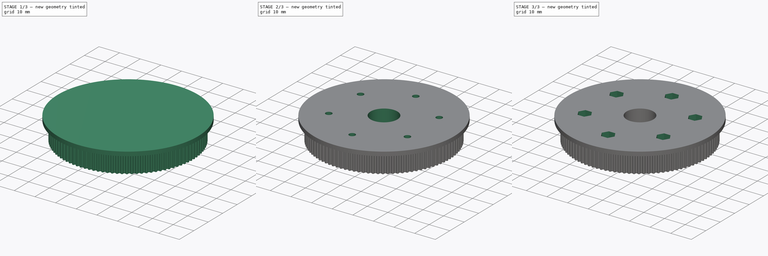
[diagram: build sequence overview — one tinted view per stage of 3, left to right]
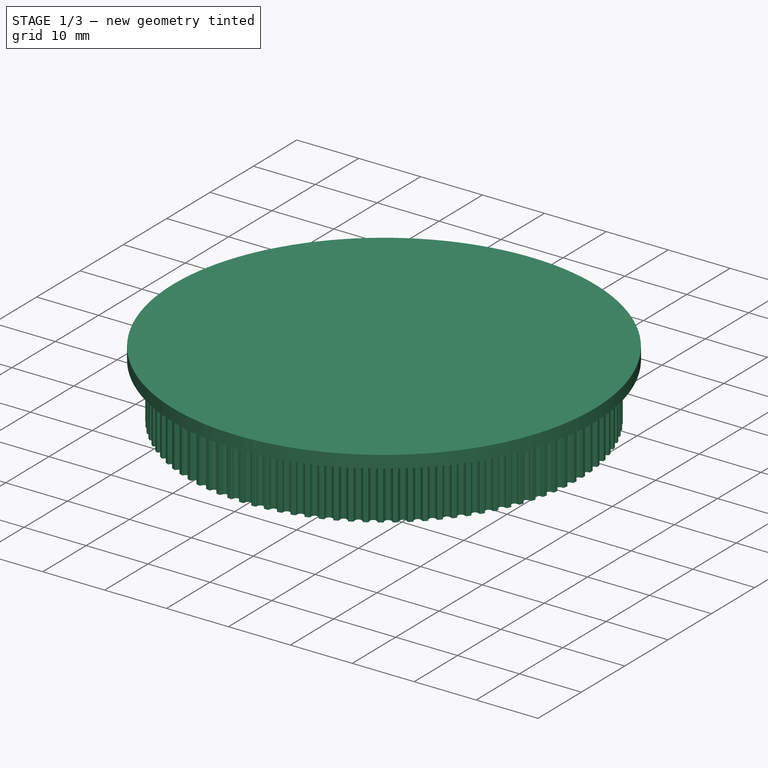
[diagram: stage 1 of 3 — iso view after this stage's code; geometry added in this stage tinted green]
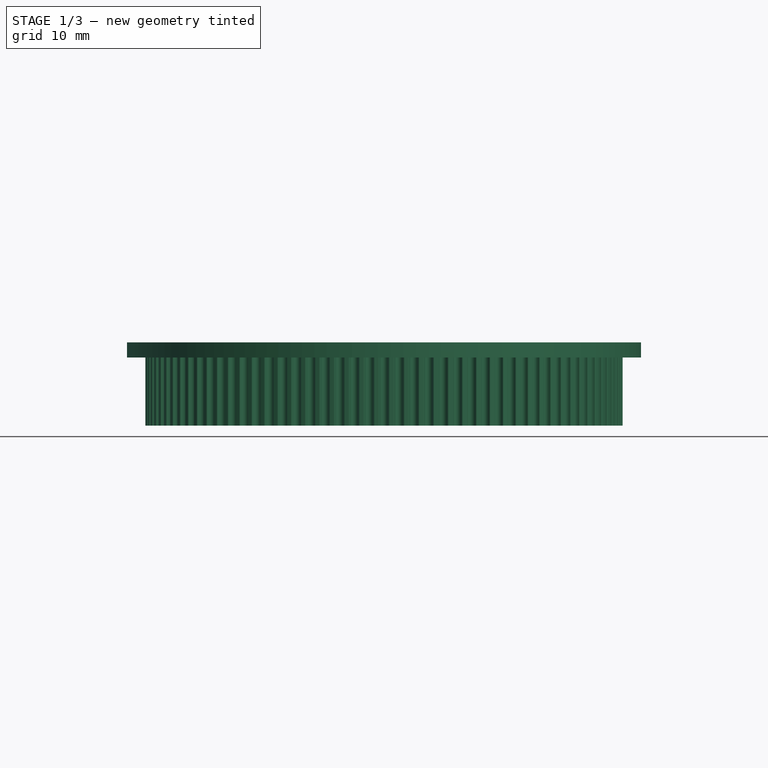
[diagram: stage 1 of 3 — front view after this stage's code; geometry added in this stage tinted green]
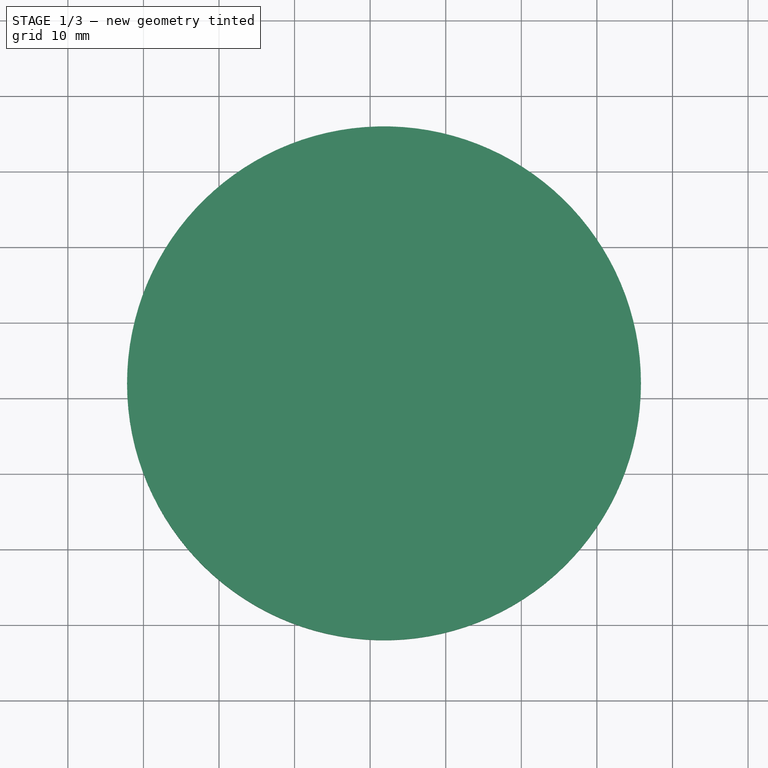
[diagram: stage 1 of 3 — top view after this stage's code; geometry added in this stage tinted green]
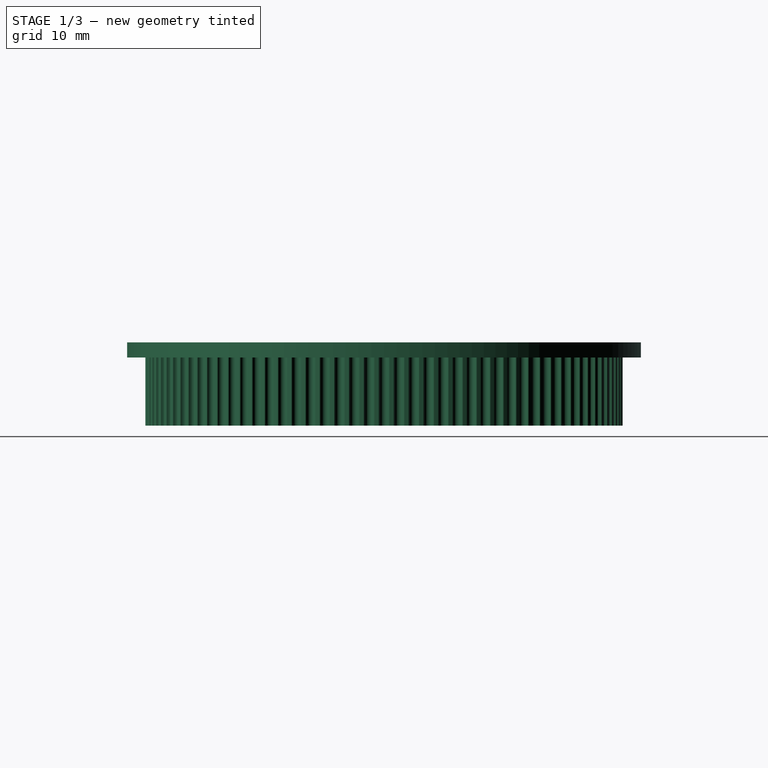
[diagram: stage 1 of 3 — right view after this stage's code; geometry added in this stage tinted green]
FCSTD DOCUMENT  (FreeCAD 0.20R29410 (Git))
Label: #10_MotorsBasePulleys
License: All rights reserved
LicenseURL: http://en.wikipedia.org/wiki/All_rights_reserved
objects: Sketcher::SketchObject×5, PartDesign::Pocket×3, PartDesign::Pad×2, PartDesign::PolarPattern×2, PartDesign::Body×1
note: 18 computed .brp shape members not serialized (recipe doc carries the construction recipe); baked Part::Feature solids carry a one-line shape summary decoded from their .brp

FEATURE [Sketcher::SketchObject] Sketch
  FullyConstrained = false
  sketch-geometry (701):
    g0: Circle CenterX=31.831 CenterY=31.831 CenterZ=0 NormalX=0 NormalY=0 NormalZ=-1 AngleXU=0 Radius=2.5
    g1: ArcOfCircle CenterX=63.2592 CenterY=31.1006 CenterZ=0 NormalX=0 NormalY=0 NormalZ=1 AngleXU=0 Radius=0.15 StartAngle=0 EndAngle=1.44109
    g2: ArcOfCircle CenterX=63.3675 CenterY=32.2454 CenterZ=0 NormalX=0 NormalY=0 NormalZ=1 AngleXU=0 Radius=1 StartAngle=4.28693 EndAngle=4.6234
    g3: ArcOfCircle CenterX=63.203 CenterY=31.831 CenterZ=0 NormalX=0 NormalY=0 NormalZ=1 AngleXU=0 Radius=0.555 StartAngle=3.14159 EndAngle=4.24874
    g4: ArcOfCircle CenterX=63.203 CenterY=31.831 CenterZ=0 NormalX=0 NormalY=0 NormalZ=1 AngleXU=0 Radius=0.555 StartAngle=2.03444 EndAngle=3.14159
    g5: ArcOfCircle CenterX=63.3675 CenterY=31.4165 CenterZ=0 NormalX=0 NormalY=0 NormalZ=1 AngleXU=0 Radius=1 StartAngle=1.65979 EndAngle=1.99625
    g6: ArcOfCircle CenterX=63.2592 CenterY=32.5613 CenterZ=0 NormalX=0 NormalY=0 NormalZ=1 AngleXU=0 Radius=0.15 StartAngle=4.84209 EndAngle=6.28319
    g7: ArcOfCircle CenterX=31.8407 CenterY=31.8313 CenterZ=0 NormalX=0 NormalY=0 NormalZ=1 AngleXU=0 Radius=31.577 StartAngle=0.0231213 EndAngle=0.0397106
    g8: ArcOfCircle CenterX=63.2431 CenterY=33.0755 CenterZ=0 NormalX=0 NormalY=0 NormalZ=1 AngleXU=0 Radius=0.15 StartAngle=0.0628319 EndAngle=1.50393
    g9: ArcOfCircle CenterX=63.2793 CenterY=34.2248 CenterZ=0 NormalX=0 NormalY=0 NormalZ=1 AngleXU=0 Radius=1 StartAngle=4.34976 EndAngle=4.68623
    g10: ArcOfCircle CenterX=63.1411 CenterY=33.8009 CenterZ=0 NormalX=0 NormalY=0 NormalZ=1 AngleXU=0 Radius=0.555 StartAngle=3.20442 EndAngle=4.31157
    g11: ArcOfCircle CenterX=63.1411 CenterY=33.8009 CenterZ=0 NormalX=0 NormalY=0 NormalZ=1 AngleXU=0 Radius=0.555 StartAngle=2.09728 EndAngle=3.20442
    g12: ArcOfCircle CenterX=63.3313 CenterY=33.3976 CenterZ=0 NormalX=0 NormalY=0 NormalZ=1 AngleXU=0 Radius=1 StartAngle=1.72262 EndAngle=2.05909
    g13: ArcOfCircle CenterX=63.1514 CenterY=34.5333 CenterZ=0 NormalX=0 NormalY=0 NormalZ=1 AngleXU=0 Radius=0.15 StartAngle=4.90492 EndAngle=6.34602
    g14: ArcOfCircle CenterX=31.8407 CenterY=31.8319 CenterZ=0 NormalX=0 NormalY=0 NormalZ=1 AngleXU=0 Radius=31.577 StartAngle=0.0859531 EndAngle=0.102542
    g15: ArcOfCircle CenterX=63.103 CenterY=35.0454 CenterZ=0 NormalX=0 NormalY=0 NormalZ=1 AngleXU=0 Radius=0.15 StartAngle=0.125664 EndAngle=1.56676
    g16: ArcOfCircle CenterX=63.0669 CenterY=36.1947 CenterZ=0 NormalX=0 NormalY=0 NormalZ=1 AngleXU=0 Radius=1 StartAngle=4.41259 EndAngle=4.74906
    g17: ArcOfCircle CenterX=62.9556 CenterY=35.7629 CenterZ=0 NormalX=0 NormalY=0 NormalZ=1 AngleXU=0 Radius=0.555 StartAngle=3.26726 EndAngle=4.37441
    g18: ArcOfCircle CenterX=62.9556 CenterY=35.7629 CenterZ=0 NormalX=0 NormalY=0 NormalZ=1 AngleXU=0 Radius=0.555 StartAngle=2.16011 EndAngle=3.26726
    g19: ArcOfCircle CenterX=63.1708 CenterY=35.3724 CenterZ=0 NormalX=0 NormalY=0 NormalZ=1 AngleXU=0 Radius=1 StartAngle=1.78545 EndAngle=2.12192
    g20: ArcOfCircle CenterX=62.9199 CenterY=36.4946 CenterZ=0 NormalX=0 NormalY=0 NormalZ=1 AngleXU=0 Radius=0.15 StartAngle=4.96776 EndAngle=6.40885
    g21: ArcOfCircle CenterX=31.8406 CenterY=31.8325 CenterZ=0 NormalX=0 NormalY=0 NormalZ=1 AngleXU=0 Radius=31.577 StartAngle=0.148785 EndAngle=0.165374
    g22: ArcOfCircle CenterX=62.8394 CenterY=37.0027 CenterZ=0 NormalX=0 NormalY=0 NormalZ=1 AngleXU=0 Radius=0.15 StartAngle=0.188496 EndAngle=1.62959
    g23: ArcOfCircle CenterX=62.7313 CenterY=38.1474 CenterZ=0 NormalX=0 NormalY=0 NormalZ=1 AngleXU=0 Radius=1 StartAngle=4.47543 EndAngle=4.81189
    g24: ArcOfCircle CenterX=62.6473 CenterY=37.7095 CenterZ=0 NormalX=0 NormalY=0 NormalZ=1 AngleXU=0 Radius=0.555 StartAngle=3.33009 EndAngle=4.43724
    g25: ArcOfCircle CenterX=62.6473 CenterY=37.7095 CenterZ=0 NormalX=0 NormalY=0 NormalZ=1 AngleXU=0 Radius=0.555 StartAngle=2.22294 EndAngle=3.33009
    g26: ArcOfCircle CenterX=62.8866 CenterY=37.3332 CenterZ=0 NormalX=0 NormalY=0 NormalZ=1 AngleXU=0 Radius=1 StartAngle=1.84828 EndAngle=2.18475
    g27: ArcOfCircle CenterX=62.5657 CenterY=38.4375 CenterZ=0 NormalX=0 NormalY=0 NormalZ=1 AngleXU=0 Radius=0.15 StartAngle=5.03059 EndAngle=6.47168
    g28: ArcOfCircle CenterX=31.8405 CenterY=31.8331 CenterZ=0 NormalX=0 NormalY=0 NormalZ=1 AngleXU=0 Radius=31.577 StartAngle=0.211617 EndAngle=0.228206
    g29: ArcOfCircle CenterX=62.4535 CenterY=38.9395 CenterZ=0 NormalX=0 NormalY=0 NormalZ=1 AngleXU=0 Radius=0.15 StartAngle=0.251327 EndAngle=1.69242
    g30: ArcOfCircle CenterX=62.2737 CenterY=40.0752 CenterZ=0 NormalX=0 NormalY=0 NormalZ=1 AngleXU=0 Radius=1 StartAngle=4.53826 EndAngle=4.87472
    g31: ArcOfCircle CenterX=62.2174 CenterY=39.6329 CenterZ=0 NormalX=0 NormalY=0 NormalZ=1 AngleXU=0 Radius=0.555 StartAngle=3.39292 EndAngle=4.50007
    g32: ArcOfCircle CenterX=62.2174 CenterY=39.6329 CenterZ=0 NormalX=0 NormalY=0 NormalZ=1 AngleXU=0 Radius=0.555 StartAngle=2.28577 EndAngle=3.39292
    g33: ArcOfCircle CenterX=62.4798 CenterY=39.2724 CenterZ=0 NormalX=0 NormalY=0 NormalZ=1 AngleXU=0 Radius=1 StartAngle=1.91112 EndAngle=2.24758
    g34: ArcOfCircle CenterX=62.0902 CenterY=40.3543 CenterZ=0 NormalX=0 NormalY=0 NormalZ=1 AngleXU=0 Radius=0.15 StartAngle=5.09342 EndAngle=6.53451
    g35: ArcOfCircle CenterX=31.8403 CenterY=31.8337 CenterZ=0 NormalX=0 NormalY=0 NormalZ=1 AngleXU=0 Radius=31.577 StartAngle=0.274449 EndAngle=0.291038
    g36: ArcOfCircle CenterX=61.9467 CenterY=40.8483 CenterZ=0 NormalX=0 NormalY=0 NormalZ=1 AngleXU=0 Radius=0.15 StartAngle=0.314159 EndAngle=1.75525
    g37: ArcOfCircle CenterX=61.6959 CenterY=41.9705 CenterZ=0 NormalX=0 NormalY=0 NormalZ=1 AngleXU=0 Radius=1 StartAngle=4.60109 EndAngle=4.93756
    g38: ArcOfCircle CenterX=61.6675 CenterY=41.5255 CenterZ=0 NormalX=0 NormalY=0 NormalZ=1 AngleXU=0 Radius=0.555 StartAngle=3.45575 EndAngle=4.5629
    g39: ArcOfCircle CenterX=61.6675 CenterY=41.5255 CenterZ=0 NormalX=0 NormalY=0 NormalZ=1 AngleXU=0 Radius=0.555 StartAngle=2.3486 EndAngle=3.45575
    g40: ArcOfCircle CenterX=61.9521 CenterY=41.1822 CenterZ=0 NormalX=0 NormalY=0 NormalZ=1 AngleXU=0 Radius=1 StartAngle=1.97395 EndAngle=2.31041
    g41: ArcOfCircle CenterX=61.4953 CenterY=42.2374 CenterZ=0 NormalX=0 NormalY=0 NormalZ=1 AngleXU=0 Radius=0.15 StartAngle=5.15625 EndAngle=6.59734
    g42: ArcOfCircle CenterX=31.8401 CenterY=31.8343 CenterZ=0 NormalX=0 NormalY=0 NormalZ=1 AngleXU=0 Radius=31.577 StartAngle=0.337281 EndAngle=0.35387
    g43: ArcOfCircle CenterX=61.3211 CenterY=42.7214 CenterZ=0 NormalX=0 NormalY=0 NormalZ=1 AngleXU=0 Radius=0.15 StartAngle=0.376991 EndAngle=1.81808
    g44: ArcOfCircle CenterX=61.0003 CenterY=43.8257 CenterZ=0 NormalX=0 NormalY=0 NormalZ=1 AngleXU=0 Radius=1 StartAngle=4.66392 EndAngle=5.00039
    g45: ArcOfCircle CenterX=60.9999 CenterY=43.3798 CenterZ=0 NormalX=0 NormalY=0 NormalZ=1 AngleXU=0 Radius=0.555 StartAngle=3.51858 EndAngle=4.62573
    g46: ArcOfCircle CenterX=60.9999 CenterY=43.3798 CenterZ=0 NormalX=0 NormalY=0 NormalZ=1 AngleXU=0 Radius=0.555 StartAngle=2.41144 EndAngle=3.51858
    g47: ArcOfCircle CenterX=61.3055 CenterY=43.055 CenterZ=0 NormalX=0 NormalY=0 NormalZ=1 AngleXU=0 Radius=1 StartAngle=2.03678 EndAngle=2.37325
    g48: ArcOfCircle CenterX=60.7834 CenterY=44.0796 CenterZ=0 NormalX=0 NormalY=0 NormalZ=1 AngleXU=0 Radius=0.15 StartAngle=5.21908 EndAngle=6.66018
    g49: ArcOfCircle CenterX=31.8399 CenterY=31.8348 CenterZ=0 NormalX=0 NormalY=0 NormalZ=1 AngleXU=0 Radius=31.577 StartAngle=0.400112 EndAngle=0.416702
    g50: ArcOfCircle CenterX=60.5791 CenterY=44.5517 CenterZ=0 NormalX=0 NormalY=0 NormalZ=1 AngleXU=0 Radius=0.15 StartAngle=0.439823 EndAngle=1.88092
    g51: ArcOfCircle CenterX=60.1896 CenterY=45.6336 CenterZ=0 NormalX=0 NormalY=0 NormalZ=1 AngleXU=0 Radius=1 StartAngle=4.72675 EndAngle=5.06322
    g52: ArcOfCircle CenterX=60.2172 CenterY=45.1885 CenterZ=0 NormalX=0 NormalY=0 NormalZ=1 AngleXU=0 Radius=0.555 StartAngle=3.58142 EndAngle=4.68856
    g53: ArcOfCircle CenterX=60.2172 CenterY=45.1885 CenterZ=0 NormalX=0 NormalY=0 NormalZ=1 AngleXU=0 Radius=0.555 StartAngle=2.47427 EndAngle=3.58142
    g54: ArcOfCircle CenterX=60.5425 CenterY=44.8836 CenterZ=0 NormalX=0 NormalY=0 NormalZ=1 AngleXU=0 Radius=1 StartAngle=2.09961 EndAngle=2.43608
    g55: ArcOfCircle CenterX=59.9572 CenterY=45.8733 CenterZ=0 NormalX=0 NormalY=0 NormalZ=1 AngleXU=0 Radius=0.15 StartAngle=5.28191 EndAngle=6.72301
    g56: ArcOfCircle CenterX=31.8396 CenterY=31.8354 CenterZ=0 NormalX=0 NormalY=0 NormalZ=1 AngleXU=0 Radius=31.577 StartAngle=0.462944 EndAngle=0.479534
    g57: ArcOfCircle CenterX=59.7236 CenterY=46.3317 CenterZ=0 NormalX=0 NormalY=0 NormalZ=1 AngleXU=0 Radius=0.15 StartAngle=0.502655 EndAngle=1.94375
    g58: ArcOfCircle CenterX=59.267 CenterY=47.387 CenterZ=0 NormalX=0 NormalY=0 NormalZ=1 AngleXU=0 Radius=1 StartAngle=4.78959 EndAngle=5.12605
    g59: ArcOfCircle CenterX=59.3225 CenterY=46.9446 CenterZ=0 NormalX=0 NormalY=0 NormalZ=1 AngleXU=0 Radius=0.555 StartAngle=3.64425 EndAngle=4.7514
    g60: ArcOfCircle CenterX=59.3225 CenterY=46.9446 CenterZ=0 NormalX=0 NormalY=0 NormalZ=1 AngleXU=0 Radius=0.555 StartAngle=2.5371 EndAngle=3.64425
    g61: ArcOfCircle CenterX=59.6663 CenterY=46.6606 CenterZ=0 NormalX=0 NormalY=0 NormalZ=1 AngleXU=0 Radius=1 StartAngle=2.16244 EndAngle=2.49891
    g62: ArcOfCircle CenterX=59.0199 CenterY=47.6117 CenterZ=0 NormalX=0 NormalY=0 NormalZ=1 AngleXU=0 Radius=0.15 StartAngle=5.34475 EndAngle=6.78584
    g63: ArcOfCircle CenterX=31.8393 CenterY=31.8359 CenterZ=0 NormalX=0 NormalY=0 NormalZ=1 AngleXU=0 Radius=31.577 StartAngle=0.525776 EndAngle=0.542365
    g64: ArcOfCircle CenterX=58.7581 CenterY=48.0544 CenterZ=0 NormalX=0 NormalY=0 NormalZ=1 AngleXU=0 Radius=0.15 StartAngle=0.565487 EndAngle=2.00658
    g65: ArcOfCircle CenterX=58.2361 CenterY=49.079 CenterZ=0 NormalX=0 NormalY=0 NormalZ=1 AngleXU=0 Radius=1 StartAngle=4.85242 EndAngle=5.18888
    g66: ArcOfCircle CenterX=58.3192 CenterY=48.6409 CenterZ=0 NormalX=0 NormalY=0 NormalZ=1 AngleXU=0 Radius=0.555 StartAngle=3.70708 EndAngle=4.81423
    g67: ArcOfCircle CenterX=58.3192 CenterY=48.6409 CenterZ=0 NormalX=0 NormalY=0 NormalZ=1 AngleXU=0 Radius=0.555 StartAngle=2.59993 EndAngle=3.70708
    g68: ArcOfCircle CenterX=58.6802 CenterY=48.3792 CenterZ=0 NormalX=0 NormalY=0 NormalZ=1 AngleXU=0 Radius=1 StartAngle=2.22527 EndAngle=2.56174
    g69: ArcOfCircle CenterX=57.9754 CenterY=49.2877 CenterZ=0 NormalX=0 NormalY=0 NormalZ=1 AngleXU=0 Radius=0.15 StartAngle=5.40758 EndAngle=6.84867
    g70: ArcOfCircle CenterX=31.839 CenterY=31.8364 CenterZ=0 NormalX=0 NormalY=0 NormalZ=1 AngleXU=0 Radius=31.577 StartAngle=0.588608 EndAngle=0.605197
    g71: ArcOfCircle CenterX=57.6863 CenterY=49.7132 CenterZ=0 NormalX=0 NormalY=0 NormalZ=1 AngleXU=0 Radius=0.15 StartAngle=0.628319 EndAngle=2.06941
    g72: ArcOfCircle CenterX=57.101 CenterY=50.703 CenterZ=0 NormalX=0 NormalY=0 NormalZ=1 AngleXU=0 Radius=1 StartAngle=4.91525 EndAngle=5.25172
    g73: ArcOfCircle CenterX=57.2115 CenterY=50.271 CenterZ=0 NormalX=0 NormalY=0 NormalZ=1 AngleXU=0 Radius=0.555 StartAngle=3.76991 EndAngle=4.87706
    g74: ArcOfCircle CenterX=57.2115 CenterY=50.271 CenterZ=0 NormalX=0 NormalY=0 NormalZ=1 AngleXU=0 Radius=0.555 StartAngle=2.66276 EndAngle=3.76991
    g75: ArcOfCircle CenterX=57.5882 CenterY=50.0324 CenterZ=0 NormalX=0 NormalY=0 NormalZ=1 AngleXU=0 Radius=1 StartAngle=2.28811 EndAngle=2.62457
    g76: ArcOfCircle CenterX=56.8277 CenterY=50.8949 CenterZ=0 NormalX=0 NormalY=0 NormalZ=1 AngleXU=0 Radius=0.15 StartAngle=5.47041 EndAngle=6.9115
    g77: ArcOfCircle CenterX=31.8387 CenterY=31.8369 CenterZ=0 NormalX=0 NormalY=0 NormalZ=1 AngleXU=0 Radius=31.577 StartAngle=0.65144 EndAngle=0.668029
    g78: ArcOfCircle CenterX=56.5124 CenterY=51.3014 CenterZ=0 NormalX=0 NormalY=0 NormalZ=1 AngleXU=0 Radius=0.15 StartAngle=0.69115 EndAngle=2.13224
    g79: ArcOfCircle CenterX=55.8661 CenterY=52.2525 CenterZ=0 NormalX=0 NormalY=0 NormalZ=1 AngleXU=0 Radius=1 StartAngle=4.97808 EndAngle=5.31455
    g80: ArcOfCircle CenterX=56.0035 CenterY=51.8282 CenterZ=0 NormalX=0 NormalY=0 NormalZ=1 AngleXU=0 Radius=0.555 StartAngle=3.83274 EndAngle=4.93989
    g81: ArcOfCircle CenterX=56.0035 CenterY=51.8282 CenterZ=0 NormalX=0 NormalY=0 NormalZ=1 AngleXU=0 Radius=0.555 StartAngle=2.72559 EndAngle=3.83274
    g82: ArcOfCircle CenterX=56.3945 CenterY=51.6138 CenterZ=0 NormalX=0 NormalY=0 NormalZ=1 AngleXU=0 Radius=1 StartAngle=2.35094 EndAngle=2.68741
    g83: ArcOfCircle CenterX=55.5813 CenterY=52.4268 CenterZ=0 NormalX=0 NormalY=0 NormalZ=1 AngleXU=0 Radius=0.15 StartAngle=5.53324 EndAngle=6.97434
    g84: ArcOfCircle CenterX=31.8383 CenterY=31.8374 CenterZ=0 NormalX=0 NormalY=0 NormalZ=1 AngleXU=0 Radius=31.577 StartAngle=0.714272 EndAngle=0.730861
    g85: ArcOfCircle CenterX=55.2411 CenterY=52.8127 CenterZ=0 NormalX=0 NormalY=0 NormalZ=1 AngleXU=0 Radius=0.15 StartAngle=0.753982 EndAngle=2.19508
    g86: ArcOfCircle CenterX=54.5364 CenterY=53.7213 CenterZ=0 NormalX=0 NormalY=0 NormalZ=1 AngleXU=0 Radius=1 StartAngle=5.04091 EndAngle=5.37738
    g87: ArcOfCircle CenterX=54.7002 CenterY=53.3066 CenterZ=0 NormalX=0 NormalY=0 NormalZ=1 AngleXU=0 Radius=0.555 StartAngle=3.89557 EndAngle=5.00272
    g88: ArcOfCircle CenterX=54.7002 CenterY=53.3066 CenterZ=0 NormalX=0 NormalY=0 NormalZ=1 AngleXU=0 Radius=0.555 StartAngle=2.78843 EndAngle=3.89557
    g89: ArcOfCircle CenterX=55.1038 CenterY=53.1171 CenterZ=0 NormalX=0 NormalY=0 NormalZ=1 AngleXU=0 Radius=1 StartAngle=2.41377 EndAngle=2.75024
    g90: ArcOfCircle CenterX=54.2412 CenterY=53.8775 CenterZ=0 NormalX=0 NormalY=0 NormalZ=1 AngleXU=0 Radius=0.15 StartAngle=5.59607 EndAngle=7.03717
    g91: ArcOfCircle CenterX=31.8379 CenterY=31.8379 CenterZ=0 NormalX=0 NormalY=0 NormalZ=1 AngleXU=0 Radius=31.577 StartAngle=0.777104 EndAngle=0.793693
    g92: ArcOfCircle CenterX=53.8775 CenterY=54.2412 CenterZ=0 NormalX=0 NormalY=0 NormalZ=1 AngleXU=0 Radius=0.15 StartAngle=0.816814 EndAngle=2.25791
    g93: ArcOfCircle CenterX=53.1171 CenterY=55.1038 CenterZ=0 NormalX=0 NormalY=0 NormalZ=1 AngleXU=0 Radius=1 StartAngle=5.10374 EndAngle=5.44021
    g94: ArcOfCircle CenterX=53.3066 CenterY=54.7002 CenterZ=0 NormalX=0 NormalY=0 NormalZ=1 AngleXU=0 Radius=0.555 StartAngle=3.95841 EndAngle=5.06556
    g95: ArcOfCircle CenterX=53.3066 CenterY=54.7002 CenterZ=0 NormalX=0 NormalY=0 NormalZ=1 AngleXU=0 Radius=0.555 StartAngle=2.85126 EndAngle=3.95841
    g96: ArcOfCircle CenterX=53.7213 CenterY=54.5364 CenterZ=0 NormalX=0 NormalY=0 NormalZ=1 AngleXU=0 Radius=1 StartAngle=2.4766 EndAngle=2.81307
    g97: ArcOfCircle CenterX=52.8127 CenterY=55.2411 CenterZ=0 NormalX=0 NormalY=0 NormalZ=1 AngleXU=0 Radius=0.15 StartAngle=5.65891 EndAngle=7.1
    g98: ArcOfCircle CenterX=31.8374 CenterY=31.8383 CenterZ=0 NormalX=0 NormalY=0 NormalZ=1 AngleXU=0 Radius=31.577 StartAngle=0.839935 EndAngle=0.856525
    g99: ArcOfCircle CenterX=52.4268 CenterY=55.5813 CenterZ=0 NormalX=0 NormalY=0 NormalZ=1 AngleXU=0 Radius=0.15 StartAngle=0.879646 EndAngle=2.32074
    g100: ArcOfCircle CenterX=51.6138 CenterY=56.3945 CenterZ=0 NormalX=0 NormalY=0 NormalZ=1 AngleXU=0 Radius=1 StartAngle=5.16658 EndAngle=5.50304
    g101: ArcOfCircle CenterX=51.8282 CenterY=56.0035 CenterZ=0 NormalX=0 NormalY=0 NormalZ=1 AngleXU=0 Radius=0.555 StartAngle=4.02124 EndAngle=5.12839
    g102: ArcOfCircle CenterX=51.8282 CenterY=56.0035 CenterZ=0 NormalX=0 NormalY=0 NormalZ=1 AngleXU=0 Radius=0.555 StartAngle=2.91409 EndAngle=4.02124
    g103: ArcOfCircle CenterX=52.2525 CenterY=55.8661 CenterZ=0 NormalX=0 NormalY=0 NormalZ=1 AngleXU=0 Radius=1 StartAngle=2.53943 EndAngle=2.8759
    g104: ArcOfCircle CenterX=51.3014 CenterY=56.5124 CenterZ=0 NormalX=0 NormalY=0 NormalZ=1 AngleXU=0 Radius=0.15 StartAngle=5.72174 EndAngle=7.16283
    g105: ArcOfCircle CenterX=31.8369 CenterY=31.8387 CenterZ=0 NormalX=0 NormalY=0 NormalZ=1 AngleXU=0 Radius=31.577 StartAngle=0.902767 EndAngle=0.919357
    g106: ArcOfCircle CenterX=50.8949 CenterY=56.8277 CenterZ=0 NormalX=0 NormalY=0 NormalZ=1 AngleXU=0 Radius=0.15 StartAngle=0.942478 EndAngle=2.38357
    g107: ArcOfCircle CenterX=50.0324 CenterY=57.5882 CenterZ=0 NormalX=0 NormalY=0 NormalZ=1 AngleXU=0 Radius=1 StartAngle=5.22941 EndAngle=5.56588
    g108: ArcOfCircle CenterX=50.271 CenterY=57.2115 CenterZ=0 NormalX=0 NormalY=0 NormalZ=1 AngleXU=0 Radius=0.555 StartAngle=4.08407 EndAngle=5.19122
    g109: ArcOfCircle CenterX=50.271 CenterY=57.2115 CenterZ=0 NormalX=0 NormalY=0 NormalZ=1 AngleXU=0 Radius=0.555 StartAngle=2.97692 EndAngle=4.08407
    g110: ArcOfCircle CenterX=50.703 CenterY=57.101 CenterZ=0 NormalX=0 NormalY=0 NormalZ=1 AngleXU=0 Radius=1 StartAngle=2.60227 EndAngle=2.93873
    g111: ArcOfCircle CenterX=49.7132 CenterY=57.6863 CenterZ=0 NormalX=0 NormalY=0 NormalZ=1 AngleXU=0 Radius=0.15 StartAngle=5.78457 EndAngle=7.22566
    g112: ArcOfCircle CenterX=31.8364 CenterY=31.839 CenterZ=0 NormalX=0 NormalY=0 NormalZ=1 AngleXU=0 Radius=31.577 StartAngle=0.965599 EndAngle=0.982188
    g113: ArcOfCircle CenterX=49.2877 CenterY=57.9754 CenterZ=0 NormalX=0 NormalY=0 NormalZ=1 AngleXU=0 Radius=0.15 StartAngle=1.00531 EndAngle=2.4464
    g114: ArcOfCircle CenterX=48.3792 CenterY=58.6802 CenterZ=0 NormalX=0 NormalY=0 NormalZ=1 AngleXU=0 Radius=1 StartAngle=5.29224 EndAngle=5.62871
    g115: ArcOfCircle CenterX=48.6409 CenterY=58.3192 CenterZ=0 NormalX=0 NormalY=0 NormalZ=1 AngleXU=0 Radius=0.555 StartAngle=4.1469 EndAngle=5.25405
    g116: ArcOfCircle CenterX=48.6409 CenterY=58.3192 CenterZ=0 NormalX=0 NormalY=0 NormalZ=1 AngleXU=0 Radius=0.555 StartAngle=3.03975 EndAngle=4.1469
    g117: ArcOfCircle CenterX=49.079 CenterY=58.2361 CenterZ=0 NormalX=0 NormalY=0 NormalZ=1 AngleXU=0 Radius=1 StartAngle=2.6651 EndAngle=3.00156
    g118: ArcOfCircle CenterX=48.0544 CenterY=58.7581 CenterZ=0 NormalX=0 NormalY=0 NormalZ=1 AngleXU=0 Radius=0.15 StartAngle=5.8474 EndAngle=7.28849
    g119: ArcOfCircle CenterX=31.8359 CenterY=31.8393 CenterZ=0 NormalX=0 NormalY=0 NormalZ=1 AngleXU=0 Radius=31.577 StartAngle=1.02843 EndAngle=1.04502
    g120: ArcOfCircle CenterX=47.6117 CenterY=59.0199 CenterZ=0 NormalX=0 NormalY=0 NormalZ=1 AngleXU=0 Radius=0.15 StartAngle=1.06814 EndAngle=2.50924
    g121: ArcOfCircle CenterX=46.6606 CenterY=59.6663 CenterZ=0 NormalX=0 NormalY=0 NormalZ=1 AngleXU=0 Radius=1 StartAngle=5.35507 EndAngle=5.69154
    g122: ArcOfCircle CenterX=46.9446 CenterY=59.3225 CenterZ=0 NormalX=0 NormalY=0 NormalZ=1 AngleXU=0 Radius=0.555 StartAngle=4.20973 EndAngle=5.31688
    g123: ArcOfCircle CenterX=46.9446 CenterY=59.3225 CenterZ=0 NormalX=0 NormalY=0 NormalZ=1 AngleXU=0 Radius=0.555 StartAngle=3.10259 EndAngle=4.20973
    g124: ArcOfCircle CenterX=47.387 CenterY=59.267 CenterZ=0 NormalX=0 NormalY=0 NormalZ=1 AngleXU=0 Radius=1 StartAngle=2.72793 EndAngle=3.0644
    g125: ArcOfCircle CenterX=46.3317 CenterY=59.7236 CenterZ=0 NormalX=0 NormalY=0 NormalZ=1 AngleXU=0 Radius=0.15 StartAngle=5.91023 EndAngle=7.35133
    g126: ArcOfCircle CenterX=31.8354 CenterY=31.8396 CenterZ=0 NormalX=0 NormalY=0 NormalZ=1 AngleXU=0 Radius=31.577 StartAngle=1.09126 EndAngle=1.10785
    g127: ArcOfCircle CenterX=45.8733 CenterY=59.9572 CenterZ=0 NormalX=0 NormalY=0 NormalZ=1 AngleXU=0 Radius=0.15 StartAngle=1.13097 EndAngle=2.57207
    g128: ArcOfCircle CenterX=44.8836 CenterY=60.5425 CenterZ=0 NormalX=0 NormalY=0 NormalZ=1 AngleXU=0 Radius=1 StartAngle=5.4179 EndAngle=5.75437
    g129: ArcOfCircle CenterX=45.1885 CenterY=60.2172 CenterZ=0 NormalX=0 NormalY=0 NormalZ=1 AngleXU=0 Radius=0.555 StartAngle=4.27257 EndAngle=5.37971
    g130: ArcOfCircle CenterX=45.1885 CenterY=60.2172 CenterZ=0 NormalX=0 NormalY=0 NormalZ=1 AngleXU=0 Radius=0.555 StartAngle=3.16542 EndAngle=4.27257
    g131: ArcOfCircle CenterX=45.6336 CenterY=60.1896 CenterZ=0 NormalX=0 NormalY=0 NormalZ=1 AngleXU=0 Radius=1 StartAngle=2.79076 EndAngle=3.12723
    g132: ArcOfCircle CenterX=44.5517 CenterY=60.5791 CenterZ=0 NormalX=0 NormalY=0 NormalZ=1 AngleXU=0 Radius=0.15 StartAngle=5.97306 EndAngle=7.41416
    g133: ArcOfCircle CenterX=31.8348 CenterY=31.8399 CenterZ=0 NormalX=0 NormalY=0 NormalZ=1 AngleXU=0 Radius=31.577 StartAngle=1.15409 EndAngle=1.17068
    g134: ArcOfCircle CenterX=44.0796 CenterY=60.7834 CenterZ=0 NormalX=0 NormalY=0 NormalZ=1 AngleXU=0 Radius=0.15 StartAngle=1.19381 EndAngle=2.6349
    g135: ArcOfCircle CenterX=43.055 CenterY=61.3055 CenterZ=0 NormalX=0 NormalY=0 NormalZ=1 AngleXU=0 Radius=1 StartAngle=5.48074 EndAngle=5.8172
    g136: ArcOfCircle CenterX=43.3798 CenterY=60.9999 CenterZ=0 NormalX=0 NormalY=0 NormalZ=1 AngleXU=0 Radius=0.555 StartAngle=4.3354 EndAngle=5.44255
    g137: ArcOfCircle CenterX=43.3798 CenterY=60.9999 CenterZ=0 NormalX=0 NormalY=0 NormalZ=1 AngleXU=0 Radius=0.555 StartAngle=3.22825 EndAngle=4.3354
    g138: ArcOfCircle CenterX=43.8257 CenterY=61.0003 CenterZ=0 NormalX=0 NormalY=0 NormalZ=1 AngleXU=0 Radius=1 StartAngle=2.85359 EndAngle=3.19006
    g139: ArcOfCircle CenterX=42.7214 CenterY=61.3211 CenterZ=0 NormalX=0 NormalY=0 NormalZ=1 AngleXU=0 Radius=0.15 StartAngle=6.0359 EndAngle=7.47699
    g140: ArcOfCircle CenterX=31.8343 CenterY=31.8401 CenterZ=0 NormalX=0 NormalY=0 NormalZ=1 AngleXU=0 Radius=31.577 StartAngle=1.21693 EndAngle=1.23352
    g141: ArcOfCircle CenterX=42.2374 CenterY=61.4953 CenterZ=0 NormalX=0 NormalY=0 NormalZ=1 AngleXU=0 Radius=0.15 StartAngle=1.25664 EndAngle=2.69773
    g142: ArcOfCircle CenterX=41.1822 CenterY=61.9521 CenterZ=0 NormalX=0 NormalY=0 NormalZ=1 AngleXU=0 Radius=1 StartAngle=5.54357 EndAngle=5.88003
    g143: ArcOfCircle CenterX=41.5255 CenterY=61.6675 CenterZ=0 NormalX=0 NormalY=0 NormalZ=1 AngleXU=0 Radius=0.555 StartAngle=4.39823 EndAngle=5.50538
    g144: ArcOfCircle CenterX=41.5255 CenterY=61.6675 CenterZ=0 NormalX=0 NormalY=0 NormalZ=1 AngleXU=0 Radius=0.555 StartAngle=3.29108 EndAngle=4.39823
    g145: ArcOfCircle CenterX=41.9705 CenterY=61.6959 CenterZ=0 NormalX=0 NormalY=0 NormalZ=1 AngleXU=0 Radius=1 StartAngle=2.91643 EndAngle=3.25289
    g146: ArcOfCircle CenterX=40.8483 CenterY=61.9467 CenterZ=0 NormalX=0 NormalY=0 NormalZ=1 AngleXU=0 Radius=0.15 StartAngle=6.09873 EndAngle=7.53982
    g147: ArcOfCircle CenterX=31.8337 CenterY=31.8403 CenterZ=0 NormalX=0 NormalY=0 NormalZ=1 AngleXU=0 Radius=31.577 StartAngle=1.27976 EndAngle=1.29635
    g148: ArcOfCircle CenterX=40.3543 CenterY=62.0902 CenterZ=0 NormalX=0 NormalY=0 NormalZ=1 AngleXU=0 Radius=0.15 StartAngle=1.31947 EndAngle=2.76056
    g149: ArcOfCircle CenterX=39.2724 CenterY=62.4798 CenterZ=0 NormalX=0 NormalY=0 NormalZ=1 AngleXU=0 Radius=1 StartAngle=5.6064 EndAngle=5.94287
    g150: ArcOfCircle CenterX=39.6329 CenterY=62.2174 CenterZ=0 NormalX=0 NormalY=0 NormalZ=1 AngleXU=0 Radius=0.555 StartAngle=4.46106 EndAngle=5.56821
    g151: ArcOfCircle CenterX=39.6329 CenterY=62.2174 CenterZ=0 NormalX=0 NormalY=0 NormalZ=1 AngleXU=0 Radius=0.555 StartAngle=3.35391 EndAngle=4.46106
    g152: ArcOfCircle CenterX=40.0752 CenterY=62.2737 CenterZ=0 NormalX=0 NormalY=0 NormalZ=1 AngleXU=0 Radius=1 StartAngle=2.97926 EndAngle=3.31572
    g153: ArcOfCircle CenterX=38.9395 CenterY=62.4535 CenterZ=0 NormalX=0 NormalY=0 NormalZ=1 AngleXU=0 Radius=0.15 StartAngle=6.16156 EndAngle=7.60265
    g154: ArcOfCircle CenterX=31.8331 CenterY=31.8405 CenterZ=0 NormalX=0 NormalY=0 NormalZ=1 AngleXU=0 Radius=31.577 StartAngle=1.34259 EndAngle=1.35918
    g155: ArcOfCircle CenterX=38.4375 CenterY=62.5657 CenterZ=0 NormalX=0 NormalY=0 NormalZ=1 AngleXU=0 Radius=0.15 StartAngle=1.3823 EndAngle=2.82339
    g156: ArcOfCircle CenterX=37.3332 CenterY=62.8866 CenterZ=0 NormalX=0 NormalY=0 NormalZ=1 AngleXU=0 Radius=1 StartAngle=5.66923 EndAngle=6.0057
    g157: ArcOfCircle CenterX=37.7095 CenterY=62.6473 CenterZ=0 NormalX=0 NormalY=0 NormalZ=1 AngleXU=0 Radius=0.555 StartAngle=4.52389 EndAngle=5.63104
    g158: ArcOfCircle CenterX=37.7095 CenterY=62.6473 CenterZ=0 NormalX=0 NormalY=0 NormalZ=1 AngleXU=0 Radius=0.555 StartAngle=3.41674 EndAngle=4.52389
    g159: ArcOfCircle CenterX=38.1474 CenterY=62.7313 CenterZ=0 NormalX=0 NormalY=0 NormalZ=1 AngleXU=0 Radius=1 StartAngle=3.04209 EndAngle=3.37856
    g160: ArcOfCircle CenterX=37.0027 CenterY=62.8394 CenterZ=0 NormalX=0 NormalY=0 NormalZ=1 AngleXU=0 Radius=0.15 StartAngle=6.22439 EndAngle=7.66549
    g161: ArcOfCircle CenterX=31.8325 CenterY=31.8406 CenterZ=0 NormalX=0 NormalY=0 NormalZ=1 AngleXU=0 Radius=31.577 StartAngle=1.40542 EndAngle=1.42201
    g162: ArcOfCircle CenterX=36.4946 CenterY=62.9199 CenterZ=0 NormalX=0 NormalY=0 NormalZ=1 AngleXU=0 Radius=0.15 StartAngle=1.44513 EndAngle=2.88623
    g163: ArcOfCircle CenterX=35.3724 CenterY=63.1708 CenterZ=0 NormalX=0 NormalY=0 NormalZ=1 AngleXU=0 Radius=1 StartAngle=5.73206 EndAngle=6.06853
    g164: ArcOfCircle CenterX=35.7629 CenterY=62.9556 CenterZ=0 NormalX=0 NormalY=0 NormalZ=1 AngleXU=0 Radius=0.555 StartAngle=4.58673 EndAngle=5.69387
    g165: ArcOfCircle CenterX=35.7629 CenterY=62.9556 CenterZ=0 NormalX=0 NormalY=0 NormalZ=1 AngleXU=0 Radius=0.555 StartAngle=3.47958 EndAngle=4.58673
    g166: ArcOfCircle CenterX=36.1947 CenterY=63.0669 CenterZ=0 NormalX=0 NormalY=0 NormalZ=1 AngleXU=0 Radius=1 StartAngle=3.10492 EndAngle=3.44139
    g167: ArcOfCircle CenterX=35.0454 CenterY=63.103 CenterZ=0 NormalX=0 NormalY=0 NormalZ=1 AngleXU=0 Radius=0.15 StartAngle=0.00403883 EndAngle=1.44513
    g168: ArcOfCircle CenterX=31.8319 CenterY=31.8407 CenterZ=0 NormalX=0 NormalY=0 NormalZ=1 AngleXU=0 Radius=31.577 StartAngle=1.46825 EndAngle=1.48484
    g169: ArcOfCircle CenterX=34.5333 CenterY=63.1514 CenterZ=0 NormalX=0 NormalY=0 NormalZ=1 AngleXU=0 Radius=0.15 StartAngle=1.50796 EndAngle=2.94906
    g170: ArcOfCircle CenterX=33.3976 CenterY=63.3313 CenterZ=0 NormalX=0 NormalY=0 NormalZ=1 AngleXU=0 Radius=1 StartAngle=5.79489 EndAngle=6.13136
    g171: ArcOfCircle CenterX=33.8009 CenterY=63.1411 CenterZ=0 NormalX=0 NormalY=0 NormalZ=1 AngleXU=0 Radius=0.555 StartAngle=4.64956 EndAngle=5.75671
    g172: ArcOfCircle CenterX=33.8009 CenterY=63.1411 CenterZ=0 NormalX=0 NormalY=0 NormalZ=1 AngleXU=0 Radius=0.555 StartAngle=3.54241 EndAngle=4.64956
    g173: ArcOfCircle CenterX=34.2248 CenterY=63.2793 CenterZ=0 NormalX=0 NormalY=0 NormalZ=1 AngleXU=0 Radius=1 StartAngle=3.16775 EndAngle=3.50422
    g174: ArcOfCircle CenterX=33.0755 CenterY=63.2431 CenterZ=0 NormalX=0 NormalY=0 NormalZ=1 AngleXU=0 Radius=0.15 StartAngle=0.0668707 EndAngle=1.50796
    g175: ArcOfCircle CenterX=31.8313 CenterY=31.8407 CenterZ=0 NormalX=0 NormalY=0 NormalZ=1 AngleXU=0 Radius=31.577 StartAngle=1.53109 EndAngle=1.54768
    g176: ArcOfCircle CenterX=32.5613 CenterY=63.2592 CenterZ=0 NormalX=0 NormalY=0 NormalZ=1 AngleXU=0 Radius=0.15 StartAngle=1.5708 EndAngle=3.01189
    g177: ArcOfCircle CenterX=31.4165 CenterY=63.3675 CenterZ=0 NormalX=0 NormalY=0 NormalZ=1 AngleXU=0 Radius=1 StartAngle=5.85773 EndAngle=6.19419
    g178: ArcOfCircle CenterX=31.831 CenterY=63.203 CenterZ=0 NormalX=0 NormalY=0 NormalZ=1 AngleXU=0 Radius=0.555 StartAngle=4.71239 EndAngle=5.81954
    g179: ArcOfCircle CenterX=31.831 CenterY=63.203 CenterZ=0 NormalX=0 NormalY=0 NormalZ=1 AngleXU=0 Radius=0.555 StartAngle=3.60524 EndAngle=4.71239
    g180: ArcOfCircle CenterX=32.2454 CenterY=63.3675 CenterZ=0 NormalX=0 NormalY=0 NormalZ=1 AngleXU=0 Radius=1 StartAngle=3.23058 EndAngle=3.56705
    g181: ArcOfCircle CenterX=31.1006 CenterY=63.2592 CenterZ=0 NormalX=0 NormalY=0 NormalZ=1 AngleXU=0 Radius=0.15 StartAngle=0.129703 EndAngle=1.5708
    g182: ArcOfCircle CenterX=31.8307 CenterY=31.8407 CenterZ=0 NormalX=0 NormalY=0 NormalZ=1 AngleXU=0 Radius=31.577 StartAngle=1.59392 EndAngle=1.61051
    g183: ArcOfCircle CenterX=30.5865 CenterY=63.2431 CenterZ=0 NormalX=0 NormalY=0 NormalZ=1 AngleXU=0 Radius=0.15 StartAngle=1.63363 EndAngle=3.07472
    g184: ArcOfCircle CenterX=29.4372 CenterY=63.2793 CenterZ=0 NormalX=0 NormalY=0 NormalZ=1 AngleXU=0 Radius=1 StartAngle=5.92056 EndAngle=6.25703
    g185: ArcOfCircle CenterX=29.8611 CenterY=63.1411 CenterZ=0 NormalX=0 NormalY=0 NormalZ=1 AngleXU=0 Radius=0.555 StartAngle=4.77522 EndAngle=5.88237
    g186: ArcOfCircle CenterX=29.8611 CenterY=63.1411 CenterZ=0 NormalX=0 NormalY=0 NormalZ=1 AngleXU=0 Radius=0.555 StartAngle=3.66807 EndAngle=4.77522
    g187: ArcOfCircle CenterX=30.2644 CenterY=63.3313 CenterZ=0 NormalX=0 NormalY=0 NormalZ=1 AngleXU=0 Radius=1 StartAngle=3.29342 EndAngle=3.62988
    g188: ArcOfCircle CenterX=29.1287 CenterY=63.1514 CenterZ=0 NormalX=0 NormalY=0 NormalZ=1 AngleXU=0 Radius=0.15 StartAngle=0.192534 EndAngle=1.63363
    g189: ArcOfCircle CenterX=31.8301 CenterY=31.8407 CenterZ=0 NormalX=0 NormalY=0 NormalZ=1 AngleXU=0 Radius=31.577 StartAngle=1.65675 EndAngle=1.67334
    g190: ArcOfCircle CenterX=28.6166 CenterY=63.103 CenterZ=0 NormalX=0 NormalY=0 NormalZ=1 AngleXU=0 Radius=0.15 StartAngle=1.69646 EndAngle=3.13755
    g191: ArcOfCircle CenterX=27.4672 CenterY=63.0669 CenterZ=0 NormalX=0 NormalY=0 NormalZ=1 AngleXU=0 Radius=1 StartAngle=5.98339 EndAngle=6.31986
    g192: ArcOfCircle CenterX=27.899 CenterY=62.9556 CenterZ=0 NormalX=0 NormalY=0 NormalZ=1 AngleXU=0 Radius=0.555 StartAngle=4.83805 EndAngle=5.9452
    g193: ArcOfCircle CenterX=27.899 CenterY=62.9556 CenterZ=0 NormalX=0 NormalY=0 NormalZ=1 AngleXU=0 Radius=0.555 StartAngle=3.7309 EndAngle=4.83805
    g194: ArcOfCircle CenterX=28.2896 CenterY=63.1708 CenterZ=0 NormalX=0 NormalY=0 NormalZ=1 AngleXU=0 Radius=1 StartAngle=3.35625 EndAngle=3.69271
    g195: ArcOfCircle CenterX=27.1674 CenterY=62.9199 CenterZ=0 NormalX=0 NormalY=0 NormalZ=1 AngleXU=0 Radius=0.15 StartAngle=0.255366 EndAngle=1.69646
    g196: ArcOfCircle CenterX=31.8295 CenterY=31.8406 CenterZ=0 NormalX=0 NormalY=0 NormalZ=1 AngleXU=0 Radius=31.577 StartAngle=1.71958 EndAngle=1.73617
    g197: ArcOfCircle CenterX=26.6593 CenterY=62.8394 CenterZ=0 NormalX=0 NormalY=0 NormalZ=1 AngleXU=0 Radius=0.15 StartAngle=1.75929 EndAngle=3.20039
    g198: ArcOfCircle CenterX=25.5145 CenterY=62.7313 CenterZ=0 NormalX=0 NormalY=0 NormalZ=1 AngleXU=0 Radius=1 StartAngle=6.04622 EndAngle=6.38269
    g199: ArcOfCircle CenterX=25.9525 CenterY=62.6473 CenterZ=0 NormalX=0 NormalY=0 NormalZ=1 AngleXU=0 Radius=0.555 StartAngle=4.90088 EndAngle=6.00803
    g200: ArcOfCircle CenterX=25.9525 CenterY=62.6473 CenterZ=0 NormalX=0 NormalY=0 NormalZ=1 AngleXU=0 Radius=0.555 StartAngle=3.79374 EndAngle=4.90088
    g201: ArcOfCircle CenterX=26.3287 CenterY=62.8866 CenterZ=0 NormalX=0 NormalY=0 NormalZ=1 AngleXU=0 Radius=1 StartAngle=3.41908 EndAngle=3.75555
    g202: ArcOfCircle CenterX=25.2245 CenterY=62.5657 CenterZ=0 NormalX=0 NormalY=0 NormalZ=1 AngleXU=0 Radius=0.15 StartAngle=0.318198 EndAngle=1.75929
    g203: ArcOfCircle CenterX=31.8289 CenterY=31.8405 CenterZ=0 NormalX=0 NormalY=0 NormalZ=1 AngleXU=0 Radius=31.577 StartAngle=1.78241 EndAngle=1.799
    g204: ArcOfCircle CenterX=24.7225 CenterY=62.4535 CenterZ=0 NormalX=0 NormalY=0 NormalZ=1 AngleXU=0 Radius=0.15 StartAngle=1.82212 EndAngle=3.26322
    g205: ArcOfCircle CenterX=23.5868 CenterY=62.2737 CenterZ=0 NormalX=0 NormalY=0 NormalZ=1 AngleXU=0 Radius=1 StartAngle=6.10905 EndAngle=6.44552
    g206: ArcOfCircle CenterX=24.0291 CenterY=62.2174 CenterZ=0 NormalX=0 NormalY=0 NormalZ=1 AngleXU=0 Radius=0.555 StartAngle=4.96372 EndAngle=6.07087
    g207: ArcOfCircle CenterX=24.0291 CenterY=62.2174 CenterZ=0 NormalX=0 NormalY=0 NormalZ=1 AngleXU=0 Radius=0.555 StartAngle=3.85657 EndAngle=4.96372
    g208: ArcOfCircle CenterX=24.3896 CenterY=62.4798 CenterZ=0 NormalX=0 NormalY=0 NormalZ=1 AngleXU=0 Radius=1 StartAngle=3.48191 EndAngle=3.81838
    g209: ArcOfCircle CenterX=23.3077 CenterY=62.0902 CenterZ=0 NormalX=0 NormalY=0 NormalZ=1 AngleXU=0 Radius=0.15 StartAngle=0.38103 EndAngle=1.82212
    g210: ArcOfCircle CenterX=31.8283 CenterY=31.8403 CenterZ=0 NormalX=0 NormalY=0 NormalZ=1 AngleXU=0 Radius=31.577 StartAngle=1.84525 EndAngle=1.86183
    g211: ArcOfCircle CenterX=22.8137 CenterY=61.9467 CenterZ=0 NormalX=0 NormalY=0 NormalZ=1 AngleXU=0 Radius=0.15 StartAngle=1.88496 EndAngle=3.32605
    g212: ArcOfCircle CenterX=21.6915 CenterY=61.6959 CenterZ=0 NormalX=0 NormalY=0 NormalZ=1 AngleXU=0 Radius=1 StartAngle=6.17189 EndAngle=6.50835
    g213: ArcOfCircle CenterX=22.1365 CenterY=61.6675 CenterZ=0 NormalX=0 NormalY=0 NormalZ=1 AngleXU=0 Radius=0.555 StartAngle=5.02655 EndAngle=6.1337
    g214: ArcOfCircle CenterX=22.1365 CenterY=61.6675 CenterZ=0 NormalX=0 NormalY=0 NormalZ=1 AngleXU=0 Radius=0.555 StartAngle=3.9194 EndAngle=5.02655
    g215: ArcOfCircle CenterX=22.4798 CenterY=61.9521 CenterZ=0 NormalX=0 NormalY=0 NormalZ=1 AngleXU=0 Radius=1 StartAngle=3.54474 EndAngle=3.88121
    g216: ArcOfCircle CenterX=21.4245 CenterY=61.4953 CenterZ=0 NormalX=0 NormalY=0 NormalZ=1 AngleXU=0 Radius=0.15 StartAngle=0.443862 EndAngle=1.88496
    g217: ArcOfCircle CenterX=31.8277 CenterY=31.8401 CenterZ=0 NormalX=0 NormalY=0 NormalZ=1 AngleXU=0 Radius=31.577 StartAngle=1.90808 EndAngle=1.92467
    g218: ArcOfCircle CenterX=20.9405 CenterY=61.3211 CenterZ=0 NormalX=0 NormalY=0 NormalZ=1 AngleXU=0 Radius=0.15 StartAngle=1.94779 EndAngle=3.38888
    g219: ArcOfCircle CenterX=19.8363 CenterY=61.0003 CenterZ=0 NormalX=0 NormalY=0 NormalZ=1 AngleXU=0 Radius=1 StartAngle=6.23472 EndAngle=6.57118
    g220: ArcOfCircle CenterX=20.2822 CenterY=60.9999 CenterZ=0 NormalX=0 NormalY=0 NormalZ=1 AngleXU=0 Radius=0.555 StartAngle=5.08938 EndAngle=6.19653
    g221: ArcOfCircle CenterX=20.2822 CenterY=60.9999 CenterZ=0 NormalX=0 NormalY=0 NormalZ=1 AngleXU=0 Radius=0.555 StartAngle=3.98223 EndAngle=5.08938
    g222: ArcOfCircle CenterX=20.607 CenterY=61.3055 CenterZ=0 NormalX=0 NormalY=0 NormalZ=1 AngleXU=0 Radius=1 StartAngle=3.60758 EndAngle=3.94404
    g223: ArcOfCircle CenterX=19.5824 CenterY=60.7834 CenterZ=0 NormalX=0 NormalY=0 NormalZ=1 AngleXU=0 Radius=0.15 StartAngle=0.506694 EndAngle=1.94779
    g224: ArcOfCircle CenterX=31.8271 CenterY=31.8399 CenterZ=0 NormalX=0 NormalY=0 NormalZ=1 AngleXU=0 Radius=31.577 StartAngle=1.97091 EndAngle=1.9875
    g225: ArcOfCircle CenterX=19.1103 CenterY=60.5791 CenterZ=0 NormalX=0 NormalY=0 NormalZ=1 AngleXU=0 Radius=0.15 StartAngle=2.01062 EndAngle=3.45171
    g226: ArcOfCircle CenterX=18.0284 CenterY=60.1896 CenterZ=0 NormalX=0 NormalY=0 NormalZ=1 AngleXU=0 Radius=1 StartAngle=0.0143644 EndAngle=0.350831
    g227: ArcOfCircle CenterX=18.4734 CenterY=60.2172 CenterZ=0 NormalX=0 NormalY=0 NormalZ=1 AngleXU=0 Radius=0.555 StartAngle=5.15221 EndAngle=6.25936
    g228: ArcOfCircle CenterX=18.4734 CenterY=60.2172 CenterZ=0 NormalX=0 NormalY=0 NormalZ=1 AngleXU=0 Radius=0.555 StartAngle=4.04506 EndAngle=5.15221
    g229: ArcOfCircle CenterX=18.7784 CenterY=60.5425 CenterZ=0 NormalX=0 NormalY=0 NormalZ=1 AngleXU=0 Radius=1 StartAngle=3.67041 EndAngle=4.00687
    g230: ArcOfCircle CenterX=17.7887 CenterY=59.9572 CenterZ=0 NormalX=0 NormalY=0 NormalZ=1 AngleXU=0 Radius=0.15 StartAngle=0.569526 EndAngle=2.01062
    g231: ArcOfCircle CenterX=31.8266 CenterY=31.8396 CenterZ=0 NormalX=0 NormalY=0 NormalZ=1 AngleXU=0 Radius=31.577 StartAngle=2.03374 EndAngle=2.05033
    g232: ArcOfCircle CenterX=17.3303 CenterY=59.7236 CenterZ=0 NormalX=0 NormalY=0 NormalZ=1 AngleXU=0 Radius=0.15 StartAngle=2.07345 EndAngle=3.51454
    g233: ArcOfCircle CenterX=16.275 CenterY=59.267 CenterZ=0 NormalX=0 NormalY=0 NormalZ=1 AngleXU=0 Radius=1 StartAngle=0.0771962 EndAngle=0.413663
    g234: ArcOfCircle CenterX=16.7174 CenterY=59.3225 CenterZ=0 NormalX=0 NormalY=0 NormalZ=1 AngleXU=0 Radius=0.555 StartAngle=5.21504 EndAngle=6.32219
    g235: ArcOfCircle CenterX=16.7174 CenterY=59.3225 CenterZ=0 NormalX=0 NormalY=0 NormalZ=1 AngleXU=0 Radius=0.555 StartAngle=4.1079 EndAngle=5.21504
    g236: ArcOfCircle CenterX=17.0013 CenterY=59.6663 CenterZ=0 NormalX=0 NormalY=0 NormalZ=1 AngleXU=0 Radius=1 StartAngle=3.73324 EndAngle=4.06971
    g237: ArcOfCircle CenterX=16.0503 CenterY=59.0199 CenterZ=0 NormalX=0 NormalY=0 NormalZ=1 AngleXU=0 Radius=0.15 StartAngle=0.632357 EndAngle=2.07345
    g238: ArcOfCircle CenterX=31.826 CenterY=31.8393 CenterZ=0 NormalX=0 NormalY=0 NormalZ=1 AngleXU=0 Radius=31.577 StartAngle=2.09657 EndAngle=2.11316
    g239: ArcOfCircle CenterX=15.6075 CenterY=58.7581 CenterZ=0 NormalX=0 NormalY=0 NormalZ=1 AngleXU=0 Radius=0.15 StartAngle=2.13628 EndAngle=3.57738
    g240: ArcOfCircle CenterX=14.5829 CenterY=58.2361 CenterZ=0 NormalX=0 NormalY=0 NormalZ=1 AngleXU=0 Radius=1 StartAngle=0.140028 EndAngle=0.476495
    g241: ArcOfCircle CenterX=15.021 CenterY=58.3192 CenterZ=0 NormalX=0 NormalY=0 NormalZ=1 AngleXU=0 Radius=0.555 StartAngle=5.27788 EndAngle=6.38502
    g242: ArcOfCircle CenterX=15.021 CenterY=58.3192 CenterZ=0 NormalX=0 NormalY=0 NormalZ=1 AngleXU=0 Radius=0.555 StartAngle=4.17073 EndAngle=5.27788
    g243: ArcOfCircle CenterX=15.2828 CenterY=58.6802 CenterZ=0 NormalX=0 NormalY=0 NormalZ=1 AngleXU=0 Radius=1 StartAngle=3.79607 EndAngle=4.13254
    g244: ArcOfCircle CenterX=14.3742 CenterY=57.9754 CenterZ=0 NormalX=0 NormalY=0 NormalZ=1 AngleXU=0 Radius=0.15 StartAngle=0.695189 EndAngle=2.13628
    g245: ArcOfCircle CenterX=31.8255 CenterY=31.839 CenterZ=0 NormalX=0 NormalY=0 NormalZ=1 AngleXU=0 Radius=31.577 StartAngle=2.1594 EndAngle=2.17599
    g246: ArcOfCircle CenterX=13.9488 CenterY=57.6863 CenterZ=0 NormalX=0 NormalY=0 NormalZ=1 AngleXU=0 Radius=0.15 StartAngle=2.19911 EndAngle=3.64021
    g247: ArcOfCircle CenterX=12.959 CenterY=57.101 CenterZ=0 NormalX=0 NormalY=0 NormalZ=1 AngleXU=0 Radius=1 StartAngle=0.20286 EndAngle=0.539327
    g248: ArcOfCircle CenterX=13.391 CenterY=57.2115 CenterZ=0 NormalX=0 NormalY=0 NormalZ=1 AngleXU=0 Radius=0.555 StartAngle=5.34071 EndAngle=6.44786
    g249: ArcOfCircle CenterX=13.391 CenterY=57.2115 CenterZ=0 NormalX=0 NormalY=0 NormalZ=1 AngleXU=0 Radius=0.555 StartAngle=4.23356 EndAngle=5.34071
    g250: ArcOfCircle CenterX=13.6296 CenterY=57.5882 CenterZ=0 NormalX=0 NormalY=0 NormalZ=1 AngleXU=0 Radius=1 StartAngle=3.8589 EndAngle=4.19537
    g251: ArcOfCircle CenterX=12.7671 CenterY=56.8277 CenterZ=0 NormalX=0 NormalY=0 NormalZ=1 AngleXU=0 Radius=0.15 StartAngle=0.758021 EndAngle=2.19911
    g252: ArcOfCircle CenterX=31.825 CenterY=31.8387 CenterZ=0 NormalX=0 NormalY=0 NormalZ=1 AngleXU=0 Radius=31.577 StartAngle=2.22224 EndAngle=2.23883
    g253: ArcOfCircle CenterX=12.3606 CenterY=56.5124 CenterZ=0 NormalX=0 NormalY=0 NormalZ=1 AngleXU=0 Radius=0.15 StartAngle=2.26195 EndAngle=3.70304
    g254: ArcOfCircle CenterX=11.4095 CenterY=55.8661 CenterZ=0 NormalX=0 NormalY=0 NormalZ=1 AngleXU=0 Radius=1 StartAngle=0.265692 EndAngle=0.602159
    g255: ArcOfCircle CenterX=11.8337 CenterY=56.0035 CenterZ=0 NormalX=0 NormalY=0 NormalZ=1 AngleXU=0 Radius=0.555 StartAngle=5.40354 EndAngle=6.51069
    g256: ArcOfCircle CenterX=11.8337 CenterY=56.0035 CenterZ=0 NormalX=0 NormalY=0 NormalZ=1 AngleXU=0 Radius=0.555 StartAngle=4.29639 EndAngle=5.40354
    g257: ArcOfCircle CenterX=12.0482 CenterY=56.3945 CenterZ=0 NormalX=0 NormalY=0 NormalZ=1 AngleXU=0 Radius=1 StartAngle=3.92173 EndAngle=4.2582
    g258: ArcOfCircle CenterX=11.2351 CenterY=55.5813 CenterZ=0 NormalX=0 NormalY=0 NormalZ=1 AngleXU=0 Radius=0.15 StartAngle=0.820853 EndAngle=2.26195
    g259: ArcOfCircle CenterX=31.8246 CenterY=31.8383 CenterZ=0 NormalX=0 NormalY=0 NormalZ=1 AngleXU=0 Radius=31.577 StartAngle=2.28507 EndAngle=2.30166
    g260: ArcOfCircle CenterX=10.8493 CenterY=55.2411 CenterZ=0 NormalX=0 NormalY=0 NormalZ=1 AngleXU=0 Radius=0.15 StartAngle=2.32478 EndAngle=3.76587
    g261: ArcOfCircle CenterX=9.94064 CenterY=54.5364 CenterZ=0 NormalX=0 NormalY=0 NormalZ=1 AngleXU=0 Radius=1 StartAngle=0.328524 EndAngle=0.664991
    g262: ArcOfCircle CenterX=10.3554 CenterY=54.7002 CenterZ=0 NormalX=0 NormalY=0 NormalZ=1 AngleXU=0 Radius=0.555 StartAngle=5.46637 EndAngle=6.57352
    g263: ArcOfCircle CenterX=10.3554 CenterY=54.7002 CenterZ=0 NormalX=0 NormalY=0 NormalZ=1 AngleXU=0 Radius=0.555 StartAngle=4.35922 EndAngle=5.46637
    g264: ArcOfCircle CenterX=10.5449 CenterY=55.1038 CenterZ=0 NormalX=0 NormalY=0 NormalZ=1 AngleXU=0 Radius=1 StartAngle=3.98457 EndAngle=4.32103
    g265: ArcOfCircle CenterX=9.78448 CenterY=54.2412 CenterZ=0 NormalX=0 NormalY=0 NormalZ=1 AngleXU=0 Radius=0.15 StartAngle=0.883685 EndAngle=2.32478
    g266: ArcOfCircle CenterX=31.8241 CenterY=31.8379 CenterZ=0 NormalX=0 NormalY=0 NormalZ=1 AngleXU=0 Radius=31.577 StartAngle=2.3479 EndAngle=2.36449
    g267: ArcOfCircle CenterX=9.42073 CenterY=53.8775 CenterZ=0 NormalX=0 NormalY=0 NormalZ=1 AngleXU=0 Radius=0.15 StartAngle=2.38761 EndAngle=3.8287
    g268: ArcOfCircle CenterX=8.55815 CenterY=53.1171 CenterZ=0 NormalX=0 NormalY=0 NormalZ=1 AngleXU=0 Radius=1 StartAngle=0.391355 EndAngle=0.727822
    g269: ArcOfCircle CenterX=8.96179 CenterY=53.3066 CenterZ=0 NormalX=0 NormalY=0 NormalZ=1 AngleXU=0 Radius=0.555 StartAngle=5.5292 EndAngle=6.63635
    g270: ArcOfCircle CenterX=8.96179 CenterY=53.3066 CenterZ=0 NormalX=0 NormalY=0 NormalZ=1 AngleXU=0 Radius=0.555 StartAngle=4.42205 EndAngle=5.5292
    g271: ArcOfCircle CenterX=9.12556 CenterY=53.7213 CenterZ=0 NormalX=0 NormalY=0 NormalZ=1 AngleXU=0 Radius=1 StartAngle=4.0474 EndAngle=4.38387
    g272: ArcOfCircle CenterX=8.42083 CenterY=52.8127 CenterZ=0 NormalX=0 NormalY=0 NormalZ=1 AngleXU=0 Radius=0.15 StartAngle=0.946517 EndAngle=2.38761
    g273: ArcOfCircle CenterX=31.8237 CenterY=31.8374 CenterZ=0 NormalX=0 NormalY=0 NormalZ=1 AngleXU=0 Radius=31.577 StartAngle=2.41073 EndAngle=2.42732
    g274: ArcOfCircle CenterX=8.08064 CenterY=52.4268 CenterZ=0 NormalX=0 NormalY=0 NormalZ=1 AngleXU=0 Radius=0.15 StartAngle=2.45044 EndAngle=3.89154
    g275: ArcOfCircle CenterX=7.2675 CenterY=51.6138 CenterZ=0 NormalX=0 NormalY=0 NormalZ=1 AngleXU=0 Radius=1 StartAngle=0.454187 EndAngle=0.790654
    g276: ArcOfCircle CenterX=7.65846 CenterY=51.8282 CenterZ=0 NormalX=0 NormalY=0 NormalZ=1 AngleXU=0 Radius=0.555 StartAngle=5.59203 EndAngle=6.69918
    g277: ArcOfCircle CenterX=7.65846 CenterY=51.8282 CenterZ=0 NormalX=0 NormalY=0 NormalZ=1 AngleXU=0 Radius=0.555 StartAngle=4.48489 EndAngle=5.59203
    g278: ArcOfCircle CenterX=7.79586 CenterY=52.2525 CenterZ=0 NormalX=0 NormalY=0 NormalZ=1 AngleXU=0 Radius=1 StartAngle=4.11023 EndAngle=4.4467
    g279: ArcOfCircle CenterX=7.14957 CenterY=51.3014 CenterZ=0 NormalX=0 NormalY=0 NormalZ=1 AngleXU=0 Radius=0.15 StartAngle=1.00935 EndAngle=2.45044
    g280: ArcOfCircle CenterX=31.8233 CenterY=31.8369 CenterZ=0 NormalX=0 NormalY=0 NormalZ=1 AngleXU=0 Radius=31.577 StartAngle=2.47356 EndAngle=2.49015
    g281: ArcOfCircle CenterX=6.83428 CenterY=50.8949 CenterZ=0 NormalX=0 NormalY=0 NormalZ=1 AngleXU=0 Radius=0.15 StartAngle=2.51327 EndAngle=3.95437
    g282: ArcOfCircle CenterX=6.0738 CenterY=50.0324 CenterZ=0 NormalX=0 NormalY=0 NormalZ=1 AngleXU=0 Radius=1 StartAngle=0.517019 EndAngle=0.853486
    g283: ArcOfCircle CenterX=6.45052 CenterY=50.271 CenterZ=0 NormalX=0 NormalY=0 NormalZ=1 AngleXU=0 Radius=0.555 StartAngle=5.65487 EndAngle=6.76202
    g284: ArcOfCircle CenterX=6.45052 CenterY=50.271 CenterZ=0 NormalX=0 NormalY=0 NormalZ=1 AngleXU=0 Radius=0.555 StartAngle=4.54772 EndAngle=5.65487
    g285: ArcOfCircle CenterX=6.56101 CenterY=50.703 CenterZ=0 NormalX=0 NormalY=0 NormalZ=1 AngleXU=0 Radius=1 StartAngle=4.17306 EndAngle=4.50953
    g286: ArcOfCircle CenterX=5.97572 CenterY=49.7132 CenterZ=0 NormalX=0 NormalY=0 NormalZ=1 AngleXU=0 Radius=0.15 StartAngle=1.07218 EndAngle=2.51327
    g287: ArcOfCircle CenterX=31.823 CenterY=31.8364 CenterZ=0 NormalX=0 NormalY=0 NormalZ=1 AngleXU=0 Radius=31.577 StartAngle=2.5364 EndAngle=2.55298
    g288: ArcOfCircle CenterX=5.68658 CenterY=49.2877 CenterZ=0 NormalX=0 NormalY=0 NormalZ=1 AngleXU=0 Radius=0.15 StartAngle=2.57611 EndAngle=4.0172
    g289: ArcOfCircle CenterX=4.98175 CenterY=48.3792 CenterZ=0 NormalX=0 NormalY=0 NormalZ=1 AngleXU=0 Radius=1 StartAngle=0.579851 EndAngle=0.916318
    g290: ArcOfCircle CenterX=5.34274 CenterY=48.6409 CenterZ=0 NormalX=0 NormalY=0 NormalZ=1 AngleXU=0 Radius=0.555 StartAngle=5.7177 EndAngle=6.82485
    g291: ArcOfCircle CenterX=5.34274 CenterY=48.6409 CenterZ=0 NormalX=0 NormalY=0 NormalZ=1 AngleXU=0 Radius=0.555 StartAngle=4.61055 EndAngle=5.7177
    g292: ArcOfCircle CenterX=5.42589 CenterY=49.079 CenterZ=0 NormalX=0 NormalY=0 NormalZ=1 AngleXU=0 Radius=1 StartAngle=4.23589 EndAngle=4.57236
    g293: ArcOfCircle CenterX=4.9039 CenterY=48.0544 CenterZ=0 NormalX=0 NormalY=0 NormalZ=1 AngleXU=0 Radius=0.15 StartAngle=1.13501 EndAngle=2.57611
    g294: ArcOfCircle CenterX=31.8226 CenterY=31.8359 CenterZ=0 NormalX=0 NormalY=0 NormalZ=1 AngleXU=0 Radius=31.577 StartAngle=2.59923 EndAngle=2.61582
    g295: ArcOfCircle CenterX=4.64205 CenterY=47.6117 CenterZ=0 NormalX=0 NormalY=0 NormalZ=1 AngleXU=0 Radius=0.15 StartAngle=2.63894 EndAngle=4.08003
    g296: ArcOfCircle CenterX=3.99566 CenterY=46.6606 CenterZ=0 NormalX=0 NormalY=0 NormalZ=1 AngleXU=0 Radius=1 StartAngle=0.642683 EndAngle=0.97915
    g297: ArcOfCircle CenterX=4.33951 CenterY=46.9446 CenterZ=0 NormalX=0 NormalY=0 NormalZ=1 AngleXU=0 Radius=0.555 StartAngle=5.78053 EndAngle=6.88768
    g298: ArcOfCircle CenterX=4.33951 CenterY=46.9446 CenterZ=0 NormalX=0 NormalY=0 NormalZ=1 AngleXU=0 Radius=0.555 StartAngle=4.67338 EndAngle=5.78053
    g299: ArcOfCircle CenterX=4.39498 CenterY=47.387 CenterZ=0 NormalX=0 NormalY=0 NormalZ=1 AngleXU=0 Radius=1 StartAngle=4.29873 EndAngle=4.63519
    g300: ArcOfCircle CenterX=3.93836 CenterY=46.3317 CenterZ=0 NormalX=0 NormalY=0 NormalZ=1 AngleXU=0 Radius=0.15 StartAngle=1.19784 EndAngle=2.63894
    g301: ArcOfCircle CenterX=31.8223 CenterY=31.8354 CenterZ=0 NormalX=0 NormalY=0 NormalZ=1 AngleXU=0 Radius=31.577 StartAngle=2.66206 EndAngle=2.67865
    g302: ArcOfCircle CenterX=3.70482 CenterY=45.8733 CenterZ=0 NormalX=0 NormalY=0 NormalZ=1 AngleXU=0 Radius=0.15 StartAngle=2.70177 EndAngle=4.14286
    g303: ArcOfCircle CenterX=3.11943 CenterY=44.8836 CenterZ=0 NormalX=0 NormalY=0 NormalZ=1 AngleXU=0 Radius=1 StartAngle=0.705515 EndAngle=1.04198
    g304: ArcOfCircle CenterX=3.44476 CenterY=45.1885 CenterZ=0 NormalX=0 NormalY=0 NormalZ=1 AngleXU=0 Radius=0.555 StartAngle=5.84336 EndAngle=6.95051
    g305: ArcOfCircle CenterX=3.44476 CenterY=45.1885 CenterZ=0 NormalX=0 NormalY=0 NormalZ=1 AngleXU=0 Radius=0.555 StartAngle=4.73621 EndAngle=5.84336
    g306: ArcOfCircle CenterX=3.47235 CenterY=45.6336 CenterZ=0 NormalX=0 NormalY=0 NormalZ=1 AngleXU=0 Radius=1 StartAngle=4.36156 EndAngle=4.69802
    g307: ArcOfCircle CenterX=3.0829 CenterY=44.5517 CenterZ=0 NormalX=0 NormalY=0 NormalZ=1 AngleXU=0 Radius=0.15 StartAngle=1.26068 EndAngle=2.70177
    g308: ArcOfCircle CenterX=31.8221 CenterY=31.8348 CenterZ=0 NormalX=0 NormalY=0 NormalZ=1 AngleXU=0 Radius=31.577 StartAngle=2.72489 EndAngle=2.74148
    g309: ArcOfCircle CenterX=2.8786 CenterY=44.0796 CenterZ=0 NormalX=0 NormalY=0 NormalZ=1 AngleXU=0 Radius=0.15 StartAngle=2.7646 EndAngle=4.2057
    g310: ArcOfCircle CenterX=2.3565 CenterY=43.055 CenterZ=0 NormalX=0 NormalY=0 NormalZ=1 AngleXU=0 Radius=1 StartAngle=0.768347 EndAngle=1.10481
    g311: ArcOfCircle CenterX=2.66205 CenterY=43.3798 CenterZ=0 NormalX=0 NormalY=0 NormalZ=1 AngleXU=0 Radius=0.555 StartAngle=5.90619 EndAngle=7.01334
    g312: ArcOfCircle CenterX=2.66205 CenterY=43.3798 CenterZ=0 NormalX=0 NormalY=0 NormalZ=1 AngleXU=0 Radius=0.555 StartAngle=4.79905 EndAngle=5.90619
    g313: ArcOfCircle CenterX=2.66164 CenterY=43.8257 CenterZ=0 NormalX=0 NormalY=0 NormalZ=1 AngleXU=0 Radius=1 StartAngle=4.42439 EndAngle=4.76086
    g314: ArcOfCircle CenterX=2.34089 CenterY=42.7214 CenterZ=0 NormalX=0 NormalY=0 NormalZ=1 AngleXU=0 Radius=0.15 StartAngle=1.32351 EndAngle=2.7646
    g315: ArcOfCircle CenterX=31.8219 CenterY=31.8343 CenterZ=0 NormalX=0 NormalY=0 NormalZ=1 AngleXU=0 Radius=31.577 StartAngle=2.78772 EndAngle=2.80431
    g316: ArcOfCircle CenterX=2.16664 CenterY=42.2374 CenterZ=0 NormalX=0 NormalY=0 NormalZ=1 AngleXU=0 Radius=0.15 StartAngle=2.82743 EndAngle=4.26853
    g317: ArcOfCircle CenterX=1.7099 CenterY=41.1822 CenterZ=0 NormalX=0 NormalY=0 NormalZ=1 AngleXU=0 Radius=1 StartAngle=0.831178 EndAngle=1.16765
    g318: ArcOfCircle CenterX=1.99445 CenterY=41.5255 CenterZ=0 NormalX=0 NormalY=0 NormalZ=1 AngleXU=0 Radius=0.555 StartAngle=5.96903 EndAngle=7.07617
    g319: ArcOfCircle CenterX=1.99445 CenterY=41.5255 CenterZ=0 NormalX=0 NormalY=0 NormalZ=1 AngleXU=0 Radius=0.555 StartAngle=4.86188 EndAngle=5.96903
    g320: ArcOfCircle CenterX=1.96604 CenterY=41.9705 CenterZ=0 NormalX=0 NormalY=0 NormalZ=1 AngleXU=0 Radius=1 StartAngle=4.48722 EndAngle=4.82369
    g321: ArcOfCircle CenterX=1.71526 CenterY=40.8483 CenterZ=0 NormalX=0 NormalY=0 NormalZ=1 AngleXU=0 Radius=0.15 StartAngle=1.38634 EndAngle=2.82743
    g322: ArcOfCircle CenterX=31.8217 CenterY=31.8337 CenterZ=0 NormalX=0 NormalY=0 NormalZ=1 AngleXU=0 Radius=31.577 StartAngle=2.85055 EndAngle=2.86714
    g323: ArcOfCircle CenterX=1.57174 CenterY=40.3543 CenterZ=0 NormalX=0 NormalY=0 NormalZ=1 AngleXU=0 Radius=0.15 StartAngle=2.89027 EndAngle=4.33136
    g324: ArcOfCircle CenterX=1.18218 CenterY=39.2724 CenterZ=0 NormalX=0 NormalY=0 NormalZ=1 AngleXU=0 Radius=1 StartAngle=0.89401 EndAngle=1.23048
    g325: ArcOfCircle CenterX=1.44461 CenterY=39.6329 CenterZ=0 NormalX=0 NormalY=0 NormalZ=1 AngleXU=0 Radius=0.555 StartAngle=6.03186 EndAngle=7.13901
    g326: ArcOfCircle CenterX=1.44461 CenterY=39.6329 CenterZ=0 NormalX=0 NormalY=0 NormalZ=1 AngleXU=0 Radius=0.555 StartAngle=4.92471 EndAngle=6.03186
    g327: ArcOfCircle CenterX=1.38831 CenterY=40.0752 CenterZ=0 NormalX=0 NormalY=0 NormalZ=1 AngleXU=0 Radius=1 StartAngle=4.55005 EndAngle=4.88652
    g328: ArcOfCircle CenterX=1.20849 CenterY=38.9395 CenterZ=0 NormalX=0 NormalY=0 NormalZ=1 AngleXU=0 Radius=0.15 StartAngle=1.44917 EndAngle=2.89027
    g329: ArcOfCircle CenterX=31.8215 CenterY=31.8331 CenterZ=0 NormalX=0 NormalY=0 NormalZ=1 AngleXU=0 Radius=31.577 StartAngle=2.91339 EndAngle=2.92998
    g330: ArcOfCircle CenterX=1.09627 CenterY=38.4375 CenterZ=0 NormalX=0 NormalY=0 NormalZ=1 AngleXU=0 Radius=0.15 StartAngle=2.9531 EndAngle=4.39419
    g331: ArcOfCircle CenterX=0.775405 CenterY=37.3332 CenterZ=0 NormalX=0 NormalY=0 NormalZ=1 AngleXU=0 Radius=1 StartAngle=0.956842 EndAngle=1.29331
    g332: ArcOfCircle CenterX=1.01468 CenterY=37.7095 CenterZ=0 NormalX=0 NormalY=0 NormalZ=1 AngleXU=0 Radius=0.555 StartAngle=6.09469 EndAngle=7.20184
    g333: ArcOfCircle CenterX=1.01468 CenterY=37.7095 CenterZ=0 NormalX=0 NormalY=0 NormalZ=1 AngleXU=0 Radius=0.555 StartAngle=4.98754 EndAngle=6.09469
    g334: ArcOfCircle CenterX=0.930722 CenterY=38.1474 CenterZ=0 NormalX=0 NormalY=0 NormalZ=1 AngleXU=0 Radius=1 StartAngle=4.61289 EndAngle=4.94935
    g335: ArcOfCircle CenterX=0.822569 CenterY=37.0027 CenterZ=0 NormalX=0 NormalY=0 NormalZ=1 AngleXU=0 Radius=0.15 StartAngle=1.512 EndAngle=2.9531
    g336: ArcOfCircle CenterX=31.8214 CenterY=31.8325 CenterZ=0 NormalX=0 NormalY=0 NormalZ=1 AngleXU=0 Radius=31.577 StartAngle=2.97622 EndAngle=2.99281
    g337: ArcOfCircle CenterX=0.742097 CenterY=36.4946 CenterZ=0 NormalX=0 NormalY=0 NormalZ=1 AngleXU=0 Radius=0.15 StartAngle=3.01593 EndAngle=4.45702
    g338: ArcOfCircle CenterX=0.491196 CenterY=35.3724 CenterZ=0 NormalX=0 NormalY=0 NormalZ=1 AngleXU=0 Radius=1 StartAngle=1.01967 EndAngle=1.35614
    g339: ArcOfCircle CenterX=0.706378 CenterY=35.7629 CenterZ=0 NormalX=0 NormalY=0 NormalZ=1 AngleXU=0 Radius=0.555 StartAngle=6.15752 EndAngle=7.26467
    g340: ArcOfCircle CenterX=0.706378 CenterY=35.7629 CenterZ=0 NormalX=0 NormalY=0 NormalZ=1 AngleXU=0 Radius=0.555 StartAngle=5.05037 EndAngle=6.15752
    g341: ArcOfCircle CenterX=0.595083 CenterY=36.1947 CenterZ=0 NormalX=0 NormalY=0 NormalZ=1 AngleXU=0 Radius=1 StartAngle=4.67572 EndAngle=5.01218
    g342: ArcOfCircle CenterX=0.559025 CenterY=35.0454 CenterZ=0 NormalX=0 NormalY=0 NormalZ=1 AngleXU=0 Radius=0.15 StartAngle=1.57484 EndAngle=3.01593
    g343: ArcOfCircle CenterX=31.8213 CenterY=31.8319 CenterZ=0 NormalX=0 NormalY=0 NormalZ=1 AngleXU=0 Radius=31.577 StartAngle=3.03905 EndAngle=3.05564
    g344: ArcOfCircle CenterX=0.510615 CenterY=34.5333 CenterZ=0 NormalX=0 NormalY=0 NormalZ=1 AngleXU=0 Radius=0.15 StartAngle=3.07876 EndAngle=4.51985
    g345: ArcOfCircle CenterX=0.330672 CenterY=33.3976 CenterZ=0 NormalX=0 NormalY=0 NormalZ=1 AngleXU=0 Radius=1 StartAngle=1.08251 EndAngle=1.41897
    g346: ArcOfCircle CenterX=0.520905 CenterY=33.8009 CenterZ=0 NormalX=0 NormalY=0 NormalZ=1 AngleXU=0 Radius=0.555 StartAngle=6.22035 EndAngle=7.3275
    g347: ArcOfCircle CenterX=0.520905 CenterY=33.8009 CenterZ=0 NormalX=0 NormalY=0 NormalZ=1 AngleXU=0 Radius=0.555 StartAngle=5.1132 EndAngle=6.22035
    g348: ArcOfCircle CenterX=0.382718 CenterY=34.2248 CenterZ=0 NormalX=0 NormalY=0 NormalZ=1 AngleXU=0 Radius=1 StartAngle=4.73855 EndAngle=5.07502
    g349: ArcOfCircle CenterX=0.418898 CenterY=33.0755 CenterZ=0 NormalX=0 NormalY=0 NormalZ=1 AngleXU=0 Radius=0.15 StartAngle=1.63767 EndAngle=3.07876
    g350: ArcOfCircle CenterX=31.8213 CenterY=31.8313 CenterZ=0 NormalX=0 NormalY=0 NormalZ=1 AngleXU=0 Radius=31.577 StartAngle=3.10188 EndAngle=3.11847
    g351: ArcOfCircle CenterX=0.40274 CenterY=32.5613 CenterZ=0 NormalX=0 NormalY=0 NormalZ=1 AngleXU=0 Radius=0.15 StartAngle=3.14159 EndAngle=4.58269
    g352: ArcOfCircle CenterX=0.294465 CenterY=31.4165 CenterZ=0 NormalX=0 NormalY=0 NormalZ=1 AngleXU=0 Radius=1 StartAngle=1.14534 EndAngle=1.4818
    g353: ArcOfCircle CenterX=0.459 CenterY=31.831 CenterZ=0 NormalX=0 NormalY=0 NormalZ=1 AngleXU=0 Radius=0.555 StartAngle=0 EndAngle=1.10715
    g354: ArcOfCircle CenterX=0.459 CenterY=31.831 CenterZ=0 NormalX=0 NormalY=0 NormalZ=1 AngleXU=0 Radius=0.555 StartAngle=5.17604 EndAngle=6.28319
    g355: ArcOfCircle CenterX=0.294465 CenterY=32.2454 CenterZ=0 NormalX=0 NormalY=0 NormalZ=1 AngleXU=0 Radius=1 StartAngle=4.80138 EndAngle=5.13785
    g356: ArcOfCircle CenterX=0.40274 CenterY=31.1006 CenterZ=0 NormalX=0 NormalY=0 NormalZ=1 AngleXU=0 Radius=0.15 StartAngle=1.7005 EndAngle=3.14159
    g357: ArcOfCircle CenterX=31.8213 CenterY=31.8307 CenterZ=0 NormalX=0 NormalY=0 NormalZ=1 AngleXU=0 Radius=31.577 StartAngle=3.16471 EndAngle=3.1813
    g358: ArcOfCircle CenterX=0.418898 CenterY=30.5865 CenterZ=0 NormalX=0 NormalY=0 NormalZ=1 AngleXU=0 Radius=0.15 StartAngle=3.20442 EndAngle=4.64552
    g359: ArcOfCircle CenterX=0.382718 CenterY=29.4372 CenterZ=0 NormalX=0 NormalY=0 NormalZ=1 AngleXU=0 Radius=1 StartAngle=1.20817 EndAngle=1.54464
    g360: ArcOfCircle CenterX=0.520905 CenterY=29.8611 CenterZ=0 NormalX=0 NormalY=0 NormalZ=1 AngleXU=0 Radius=0.555 StartAngle=0.0628319 EndAngle=1.16998
    g361: ArcOfCircle CenterX=0.520905 CenterY=29.8611 CenterZ=0 NormalX=0 NormalY=0 NormalZ=1 AngleXU=0 Radius=0.555 StartAngle=5.23887 EndAngle=6.34602
    g362: ArcOfCircle CenterX=0.330672 CenterY=30.2644 CenterZ=0 NormalX=0 NormalY=0 NormalZ=1 AngleXU=0 Radius=1 StartAngle=4.86421 EndAngle=5.20068
    g363: ArcOfCircle CenterX=0.510615 CenterY=29.1287 CenterZ=0 NormalX=0 NormalY=0 NormalZ=1 AngleXU=0 Radius=0.15 StartAngle=1.76333 EndAngle=3.20442
    g364: ArcOfCircle CenterX=31.8213 CenterY=31.8301 CenterZ=0 NormalX=0 NormalY=0 NormalZ=1 AngleXU=0 Radius=31.577 StartAngle=3.22755 EndAngle=3.24414
    g365: ArcOfCircle CenterX=0.559025 CenterY=28.6166 CenterZ=0 NormalX=0 NormalY=0 NormalZ=1 AngleXU=0 Radius=0.15 StartAngle=3.26726 EndAngle=4.70835
    g366: ArcOfCircle CenterX=0.595083 CenterY=27.4672 CenterZ=0 NormalX=0 NormalY=0 NormalZ=1 AngleXU=0 Radius=1 StartAngle=1.271 EndAngle=1.60747
    g367: ArcOfCircle CenterX=0.706378 CenterY=27.899 CenterZ=0 NormalX=0 NormalY=0 NormalZ=1 AngleXU=0 Radius=0.555 StartAngle=0.125664 EndAngle=1.23281
    g368: ArcOfCircle CenterX=0.706378 CenterY=27.899 CenterZ=0 NormalX=0 NormalY=0 NormalZ=1 AngleXU=0 Radius=0.555 StartAngle=5.3017 EndAngle=6.40885
    g369: ArcOfCircle CenterX=0.491196 CenterY=28.2896 CenterZ=0 NormalX=0 NormalY=0 NormalZ=1 AngleXU=0 Radius=1 StartAngle=4.92704 EndAngle=5.26351
    g370: ArcOfCircle CenterX=0.742097 CenterY=27.1674 CenterZ=0 NormalX=0 NormalY=0 NormalZ=1 AngleXU=0 Radius=0.15 StartAngle=1.82616 EndAngle=3.26726
    g371: ArcOfCircle CenterX=31.8214 CenterY=31.8295 CenterZ=0 NormalX=0 NormalY=0 NormalZ=1 AngleXU=0 Radius=31.577 StartAngle=3.29038 EndAngle=3.30697
    g372: ArcOfCircle CenterX=0.822569 CenterY=26.6593 CenterZ=0 NormalX=0 NormalY=0 NormalZ=1 AngleXU=0 Radius=0.15 StartAngle=3.33009 EndAngle=4.77118
    g373: ArcOfCircle CenterX=0.930722 CenterY=25.5145 CenterZ=0 NormalX=0 NormalY=0 NormalZ=1 AngleXU=0 Radius=1 StartAngle=1.33383 EndAngle=1.6703
    g374: ArcOfCircle CenterX=1.01468 CenterY=25.9525 CenterZ=0 NormalX=0 NormalY=0 NormalZ=1 AngleXU=0 Radius=0.555 StartAngle=0.188496 EndAngle=1.29564
    g375: ArcOfCircle CenterX=1.01468 CenterY=25.9525 CenterZ=0 NormalX=0 NormalY=0 NormalZ=1 AngleXU=0 Radius=0.555 StartAngle=5.36453 EndAngle=6.47168
    g376: ArcOfCircle CenterX=0.775405 CenterY=26.3287 CenterZ=0 NormalX=0 NormalY=0 NormalZ=1 AngleXU=0 Radius=1 StartAngle=4.98988 EndAngle=5.32634
    g377: ArcOfCircle CenterX=1.09627 CenterY=25.2245 CenterZ=0 NormalX=0 NormalY=0 NormalZ=1 AngleXU=0 Radius=0.15 StartAngle=1.88899 EndAngle=3.33009
    g378: ArcOfCircle CenterX=31.8215 CenterY=31.8289 CenterZ=0 NormalX=0 NormalY=0 NormalZ=1 AngleXU=0 Radius=31.577 StartAngle=3.35321 EndAngle=3.3698
    g379: ArcOfCircle CenterX=1.20849 CenterY=24.7225 CenterZ=0 NormalX=0 NormalY=0 NormalZ=1 AngleXU=0 Radius=0.15 StartAngle=3.39292 EndAngle=4.83401
    g380: ArcOfCircle CenterX=1.38831 CenterY=23.5868 CenterZ=0 NormalX=0 NormalY=0 NormalZ=1 AngleXU=0 Radius=1 StartAngle=1.39667 EndAngle=1.73313
    g381: ArcOfCircle CenterX=1.44461 CenterY=24.0291 CenterZ=0 NormalX=0 NormalY=0 NormalZ=1 AngleXU=0 Radius=0.555 StartAngle=0.251327 EndAngle=1.35848
    g382: ArcOfCircle CenterX=1.44461 CenterY=24.0291 CenterZ=0 NormalX=0 NormalY=0 NormalZ=1 AngleXU=0 Radius=0.555 StartAngle=5.42736 EndAngle=6.53451
    g383: ArcOfCircle CenterX=1.18218 CenterY=24.3896 CenterZ=0 NormalX=0 NormalY=0 NormalZ=1 AngleXU=0 Radius=1 StartAngle=5.05271 EndAngle=5.38918
    g384: ArcOfCircle CenterX=1.57174 CenterY=23.3077 CenterZ=0 NormalX=0 NormalY=0 NormalZ=1 AngleXU=0 Radius=0.15 StartAngle=1.95183 EndAngle=3.39292
    g385: ArcOfCircle CenterX=31.8217 CenterY=31.8283 CenterZ=0 NormalX=0 NormalY=0 NormalZ=1 AngleXU=0 Radius=31.577 StartAngle=3.41604 EndAngle=3.43263
    g386: ArcOfCircle CenterX=1.71526 CenterY=22.8137 CenterZ=0 NormalX=0 NormalY=0 NormalZ=1 AngleXU=0 Radius=0.15 StartAngle=3.45575 EndAngle=4.89685
    g387: ArcOfCircle CenterX=1.96604 CenterY=21.6915 CenterZ=0 NormalX=0 NormalY=0 NormalZ=1 AngleXU=0 Radius=1 StartAngle=1.4595 EndAngle=1.79596
    g388: ArcOfCircle CenterX=1.99445 CenterY=22.1365 CenterZ=0 NormalX=0 NormalY=0 NormalZ=1 AngleXU=0 Radius=0.555 StartAngle=0.314159 EndAngle=1.42131
    g389: ArcOfCircle CenterX=1.99445 CenterY=22.1365 CenterZ=0 NormalX=0 NormalY=0 NormalZ=1 AngleXU=0 Radius=0.555 StartAngle=5.4902 EndAngle=6.59734
    g390: ArcOfCircle CenterX=1.7099 CenterY=22.4798 CenterZ=0 NormalX=0 NormalY=0 NormalZ=1 AngleXU=0 Radius=1 StartAngle=5.11554 EndAngle=5.45201
    g391: ArcOfCircle CenterX=2.16664 CenterY=21.4245 CenterZ=0 NormalX=0 NormalY=0 NormalZ=1 AngleXU=0 Radius=0.15 StartAngle=2.01466 EndAngle=3.45575
    g392: ArcOfCircle CenterX=31.8219 CenterY=31.8277 CenterZ=0 NormalX=0 NormalY=0 NormalZ=1 AngleXU=0 Radius=31.577 StartAngle=3.47887 EndAngle=3.49546
    g393: ArcOfCircle CenterX=2.34089 CenterY=20.9405 CenterZ=0 NormalX=0 NormalY=0 NormalZ=1 AngleXU=0 Radius=0.15 StartAngle=3.51858 EndAngle=4.95968
    g394: ArcOfCircle CenterX=2.66164 CenterY=19.8363 CenterZ=0 NormalX=0 NormalY=0 NormalZ=1 AngleXU=0 Radius=1 StartAngle=1.52233 EndAngle=1.8588
    g395: ArcOfCircle CenterX=2.66205 CenterY=20.2822 CenterZ=0 NormalX=0 NormalY=0 NormalZ=1 AngleXU=0 Radius=0.555 StartAngle=0.376991 EndAngle=1.48414
    g396: ArcOfCircle CenterX=2.66205 CenterY=20.2822 CenterZ=0 NormalX=0 NormalY=0 NormalZ=1 AngleXU=0 Radius=0.555 StartAngle=5.55303 EndAngle=6.66018
    g397: ArcOfCircle CenterX=2.3565 CenterY=20.607 CenterZ=0 NormalX=0 NormalY=0 NormalZ=1 AngleXU=0 Radius=1 StartAngle=5.17837 EndAngle=5.51484
    g398: ArcOfCircle CenterX=2.8786 CenterY=19.5824 CenterZ=0 NormalX=0 NormalY=0 NormalZ=1 AngleXU=0 Radius=0.15 StartAngle=2.07749 EndAngle=3.51858
    g399: ArcOfCircle CenterX=31.8221 CenterY=31.8271 CenterZ=0 NormalX=0 NormalY=0 NormalZ=1 AngleXU=0 Radius=31.577 StartAngle=3.54171 EndAngle=3.55829
    ... +301 more geometry lines
  constraints (700):
    c: Coincident(g1,g2)
    c: Coincident(g2,g3)
    c: Coincident(g3,g4)
    c: Coincident(g4,g5)
    c: Coincident(g5,g6)
    c: Coincident(g6,g7)
    c: Coincident(g7,g8)
    c: Coincident(g8,g9)
    c: Coincident(g9,g10)
    c: Coincident(g10,g11)
    c: Coincident(g11,g12)
    c: Coincident(g12,g13)
    c: Coincident(g13,g14)
    c: Coincident(g14,g15)
    c: Coincident(g15,g16)
    c: Coincident(g16,g17)
    c: Coincident(g17,g18)
    c: Coincident(g18,g19)
    c: Coincident(g19,g20)
    c: Coincident(g20,g21)
    c: Coincident(g21,g22)
    c: Coincident(g22,g23)
    c: Coincident(g23,g24)
    c: Coincident(g24,g25)
    c: Coincident(g25,g26)
    c: Coincident(g26,g27)
    c: Coincident(g27,g28)
    c: Coincident(g28,g29)
    c: Coincident(g29,g30)
    c: Coincident(g30,g31)
    c: Coincident(g31,g32)
    c: Coincident(g32,g33)
    c: Coincident(g33,g34)
    c: Coincident(g34,g35)
    c: Coincident(g35,g36)
    c: Coincident(g36,g37)
    c: Coincident(g37,g38)
    c: Coincident(g38,g39)
    c: Coincident(g39,g40)
    c: Coincident(g40,g41)
    c: Coincident(g41,g42)
    c: Coincident(g42,g43)
    c: Coincident(g43,g44)
    c: Coincident(g44,g45)
    c: Coincident(g45,g46)
    c: Coincident(g46,g47)
    c: Coincident(g47,g48)
    c: Coincident(g48,g49)
    c: Coincident(g49,g50)
    c: Coincident(g50,g51)
    c: Coincident(g51,g52)
    c: Coincident(g52,g53)
    c: Coincident(g53,g54)
    c: Coincident(g54,g55)
    c: Coincident(g55,g56)
    c: Coincident(g56,g57)
    c: Coincident(g57,g58)
    c: Coincident(g58,g59)
    c: Coincident(g59,g60)
    c: Coincident(g60,g61)
    c: Coincident(g61,g62)
    c: Coincident(g62,g63)
    c: Coincident(g63,g64)
    c: Coincident(g64,g65)
    c: Coincident(g65,g66)
    c: Coincident(g66,g67)
    c: Coincident(g67,g68)
    c: Coincident(g68,g69)
    c: Coincident(g69,g70)
    c: Coincident(g70,g71)
    c: Coincident(g71,g72)
    c: Coincident(g72,g73)
    c: Coincident(g73,g74)
    c: Coincident(g74,g75)
    c: Coincident(g75,g76)
    c: Coincident(g76,g77)
    c: Coincident(g77,g78)
    c: Coincident(g78,g79)
    c: Coincident(g79,g80)
    c: Coincident(g80,g81)
    c: Coincident(g81,g82)
    c: Coincident(g82,g83)
    c: Coincident(g83,g84)
    c: Coincident(g84,g85)
    c: Coincident(g85,g86)
    c: Coincident(g86,g87)
    c: Coincident(g87,g88)
    c: Coincident(g88,g89)
    c: Coincident(g89,g90)
    c: Coincident(g90,g91)
    c: Coincident(g91,g92)
    c: Coincident(g92,g93)
    c: Coincident(g93,g94)
    c: Coincident(g94,g95)
    c: Coincident(g95,g96)
    c: Coincident(g96,g97)
    c: Coincident(g97,g98)
    c: Coincident(g98,g99)
    c: Coincident(g99,g100)
    c: Coincident(g100,g101)
    c: Coincident(g101,g102)
    c: Coincident(g102,g103)
    c: Coincident(g103,g104)
    c: Coincident(g104,g105)
    c: Coincident(g105,g106)
    c: Coincident(g106,g107)
    c: Coincident(g107,g108)
    c: Coincident(g108,g109)
    c: Coincident(g109,g110)
    c: Coincident(g110,g111)
    c: Coincident(g111,g112)
    c: Coincident(g112,g113)
    c: Coincident(g113,g114)
    c: Coincident(g114,g115)
    c: Coincident(g115,g116)
    c: Coincident(g116,g117)
    c: Coincident(g117,g118)
    c: Coincident(g118,g119)
    c: Coincident(g119,g120)
    c: Coincident(g120,g121)
    c: Coincident(g121,g122)
    c: Coincident(g122,g123)
    c: Coincident(g123,g124)
    c: Coincident(g124,g125)
    c: Coincident(g125,g126)
    c: Coincident(g126,g127)
    c: Coincident(g127,g128)
    c: Coincident(g128,g129)
    c: Coincident(g129,g130)
    c: Coincident(g130,g131)
    c: Coincident(g131,g132)
    c: Coincident(g132,g133)
    c: Coincident(g133,g134)
    c: Coincident(g134,g135)
    c: Coincident(g135,g136)
    c: Coincident(g136,g137)
    c: Coincident(g137,g138)
    c: Coincident(g138,g139)
    c: Coincident(g139,g140)
    c: Coincident(g140,g141)
    c: Coincident(g141,g142)
    c: Coincident(g142,g143)
    c: Coincident(g143,g144)
    c: Coincident(g144,g145)
    c: Coincident(g145,g146)
    c: Coincident(g146,g147)
    c: Coincident(g147,g148)
    c: Coincident(g148,g149)
    c: Coincident(g149,g150)
    c: Coincident(g150,g151)
    c: Coincident(g151,g152)
    c: Coincident(g152,g153)
    c: Coincident(g153,g154)
    c: Coincident(g154,g155)
    c: Coincident(g155,g156)
    c: Coincident(g156,g157)
    c: Coincident(g157,g158)
    c: Coincident(g158,g159)
    c: Coincident(g159,g160)
    c: Coincident(g160,g161)
    c: Coincident(g161,g162)
    c: Coincident(g162,g163)
    c: Coincident(g163,g164)
    c: Coincident(g164,g165)
    c: Coincident(g165,g166)
    c: Coincident(g166,g167)
    c: Coincident(g167,g168)
    c: Coincident(g168,g169)
    c: Coincident(g169,g170)
    c: Coincident(g170,g171)
    c: Coincident(g171,g172)
    c: Coincident(g172,g173)
    c: Coincident(g173,g174)
    c: Coincident(g174,g175)
    c: Coincident(g175,g176)
    c: Coincident(g176,g177)
    c: Coincident(g177,g178)
    c: Coincident(g178,g179)
    c: Coincident(g179,g180)
    c: Coincident(g180,g181)
    c: Coincident(g181,g182)
    c: Coincident(g182,g183)
    c: Coincident(g183,g184)
    c: Coincident(g184,g185)
    c: Coincident(g185,g186)
    c: Coincident(g186,g187)
    c: Coincident(g187,g188)
    c: Coincident(g188,g189)
    c: Coincident(g189,g190)
    c: Coincident(g190,g191)
    c: Coincident(g191,g192)
    c: Coincident(g192,g193)
    c: Coincident(g193,g194)
    c: Coincident(g194,g195)
    c: Coincident(g195,g196)
    c: Coincident(g196,g197)
    c: Coincident(g197,g198)
    c: Coincident(g198,g199)
    c: Coincident(g199,g200)
    c: Coincident(g200,g201)
    c: Coincident(g201,g202)
    c: Coincident(g202,g203)
    c: Coincident(g203,g204)
    c: Coincident(g204,g205)
    c: Coincident(g205,g206)
    c: Coincident(g206,g207)
    c: Coincident(g207,g208)
    c: Coincident(g208,g209)
    c: Coincident(g209,g210)
    c: Coincident(g210,g211)
    c: Coincident(g211,g212)
    c: Coincident(g212,g213)
    c: Coincident(g213,g214)
    c: Coincident(g214,g215)
    c: Coincident(g215,g216)
    c: Coincident(g216,g217)
    c: Coincident(g217,g218)
    c: Coincident(g218,g219)
    c: Coincident(g219,g220)
    c: Coincident(g220,g221)
    c: Coincident(g221,g222)
    c: Coincident(g222,g223)
    c: Coincident(g223,g224)
    c: Coincident(g224,g225)
    c: Coincident(g225,g226)
    c: Coincident(g226,g227)
    c: Coincident(g227,g228)
    c: Coincident(g228,g229)
    c: Coincident(g229,g230)
    c: Coincident(g230,g231)
    c: Coincident(g231,g232)
    c: Coincident(g232,g233)
    c: Coincident(g233,g234)
    c: Coincident(g234,g235)
    c: Coincident(g235,g236)
    c: Coincident(g236,g237)
    c: Coincident(g237,g238)
    c: Coincident(g238,g239)
    c: Coincident(g239,g240)
    c: Coincident(g240,g241)
    c: Coincident(g241,g242)
    c: Coincident(g242,g243)
    c: Coincident(g243,g244)
    c: Coincident(g244,g245)
    c: Coincident(g245,g246)
    c: Coincident(g246,g247)
    c: Coincident(g247,g248)
    c: Coincident(g248,g249)
    c: Coincident(g249,g250)
    c: Coincident(g250,g251)
    c: Coincident(g251,g252)
    c: Coincident(g252,g253)
    c: Coincident(g253,g254)
    c: Coincident(g254,g255)
    c: Coincident(g255,g256)
    c: Coincident(g256,g257)
    c: Coincident(g257,g258)
    c: Coincident(g258,g259)
    c: Coincident(g259,g260)
    c: Coincident(g260,g261)
    c: Coincident(g261,g262)
    c: Coincident(g262,g263)
    c: Coincident(g263,g264)
    c: Coincident(g264,g265)
    c: Coincident(g265,g266)
    c: Coincident(g266,g267)
    c: Coincident(g267,g268)
    c: Coincident(g268,g269)
    c: Coincident(g269,g270)
    c: Coincident(g270,g271)
    c: Coincident(g271,g272)
    c: Coincident(g272,g273)
    c: Coincident(g273,g274)
    c: Coincident(g274,g275)
    c: Coincident(g275,g276)
    c: Coincident(g276,g277)
    c: Coincident(g277,g278)
    c: Coincident(g278,g279)
    c: Coincident(g279,g280)
    c: Coincident(g280,g281)
    c: Coincident(g281,g282)
    c: Coincident(g282,g283)
    c: Coincident(g283,g284)
    c: Coincident(g284,g285)
    c: Coincident(g285,g286)
    c: Coincident(g286,g287)
    c: Coincident(g287,g288)
    c: Coincident(g288,g289)
    c: Coincident(g289,g290)
    c: Coincident(g290,g291)
    c: Coincident(g291,g292)
    c: Coincident(g292,g293)
    c: Coincident(g293,g294)
    c: Coincident(g294,g295)
    c: Coincident(g295,g296)
    c: Coincident(g296,g297)
    c: Coincident(g297,g298)
    c: Coincident(g298,g299)
    c: Coincident(g299,g300)
    c: Coincident(g300,g301)
    c: Coincident(g301,g302)
    c: Coincident(g302,g303)
    c: Coincident(g303,g304)
    c: Coincident(g304,g305)
    c: Coincident(g305,g306)
    c: Coincident(g306,g307)
    c: Coincident(g307,g308)
    c: Coincident(g308,g309)
    c: Coincident(g309,g310)
    c: Coincident(g310,g311)
    c: Coincident(g311,g312)
    c: Coincident(g312,g313)
    c: Coincident(g313,g314)
    c: Coincident(g314,g315)
    c: Coincident(g315,g316)
    c: Coincident(g316,g317)
    c: Coincident(g317,g318)
    c: Coincident(g318,g319)
    c: Coincident(g319,g320)
    c: Coincident(g320,g321)
    c: Coincident(g321,g322)
    c: Coincident(g322,g323)
    c: Coincident(g323,g324)
    c: Coincident(g324,g325)
    c: Coincident(g325,g326)
    c: Coincident(g326,g327)
    c: Coincident(g327,g328)
    c: Coincident(g328,g329)
    c: Coincident(g329,g330)
    c: Coincident(g330,g331)
    c: Coincident(g331,g332)
    c: Coincident(g332,g333)
    c: Coincident(g333,g334)
    c: Coincident(g334,g335)
    c: Coincident(g335,g336)
    c: Coincident(g336,g337)
    c: Coincident(g337,g338)
    c: Coincident(g338,g339)
    c: Coincident(g339,g340)
    c: Coincident(g340,g341)
    c: Coincident(g341,g342)
    c: Coincident(g342,g343)
    c: Coincident(g343,g344)
    c: Coincident(g344,g345)
    c: Coincident(g345,g346)
    c: Coincident(g346,g347)
    c: Coincident(g347,g348)
    c: Coincident(g348,g349)
    c: Coincident(g349,g350)
    c: Coincident(g350,g351)
    c: Coincident(g351,g352)
    c: Coincident(g352,g353)
    c: Coincident(g353,g354)
    c: Coincident(g354,g355)
    c: Coincident(g355,g356)
    c: Coincident(g356,g357)
    c: Coincident(g357,g358)
    c: Coincident(g358,g359)
    c: Coincident(g359,g360)
    c: Coincident(g360,g361)
    c: Coincident(g361,g362)
    c: Coincident(g362,g363)
    c: Coincident(g363,g364)
    c: Coincident(g364,g365)
    c: Coincident(g365,g366)
    c: Coincident(g366,g367)
    c: Coincident(g367,g368)
    c: Coincident(g368,g369)
    c: Coincident(g369,g370)
    c: Coincident(g370,g371)
    c: Coincident(g371,g372)
    c: Coincident(g372,g373)
    c: Coincident(g373,g374)
    c: Coincident(g374,g375)
    c: Coincident(g375,g376)
    c: Coincident(g376,g377)
    c: Coincident(g377,g378)
    c: Coincident(g378,g379)
    c: Coincident(g379,g380)
    c: Coincident(g380,g381)
    c: Coincident(g381,g382)
    c: Coincident(g382,g383)
    c: Coincident(g383,g384)
    c: Coincident(g384,g385)
    c: Coincident(g385,g386)
    c: Coincident(g386,g387)
    c: Coincident(g387,g388)
    c: Coincident(g388,g389)
    c: Coincident(g389,g390)
    c: Coincident(g390,g391)
    c: Coincident(g391,g392)
    c: Coincident(g392,g393)
    c: Coincident(g393,g394)
    c: Coincident(g394,g395)
    c: Coincident(g395,g396)
    c: Coincident(g396,g397)
    c: Coincident(g397,g398)
    c: Coincident(g398,g399)
    c: Coincident(g399,g400)
    c: Coincident(g400,g401)
    c: Coincident(g401,g402)
    c: Coincident(g402,g403)
    c: Coincident(g403,g404)
    c: Coincident(g404,g405)
    c: Coincident(g405,g406)
    c: Coincident(g406,g407)
    c: Coincident(g407,g408)
    c: Coincident(g408,g409)
    c: Coincident(g409,g410)
    c: Coincident(g410,g411)
    c: Coincident(g411,g412)
    c: Coincident(g412,g413)
    c: Coincident(g413,g414)
    c: Coincident(g414,g415)
    c: Coincident(g415,g416)
    c: Coincident(g416,g417)
    c: Coincident(g417,g418)
    c: Coincident(g418,g419)
    c: Coincident(g419,g420)
    c: Coincident(g420,g421)
    c: Coincident(g421,g422)
    c: Coincident(g422,g423)
    c: Coincident(g423,g424)
    c: Coincident(g424,g425)
    c: Coincident(g425,g426)
    c: Coincident(g426,g427)
    c: Coincident(g427,g428)
    c: Coincident(g428,g429)
    c: Coincident(g429,g430)
    c: Coincident(g430,g431)
    c: Coincident(g431,g432)
    c: Coincident(g432,g433)
    c: Coincident(g433,g434)
    c: Coincident(g434,g435)
    c: Coincident(g435,g436)
    c: Coincident(g436,g437)
    c: Coincident(g437,g438)
    c: Coincident(g438,g439)
    c: Coincident(g439,g440)
    c: Coincident(g440,g441)
    c: Coincident(g441,g442)
    c: Coincident(g442,g443)
    c: Coincident(g443,g444)
    c: Coincident(g444,g445)
    c: Coincident(g445,g446)
    c: Coincident(g446,g447)
    c: Coincident(g447,g448)
    c: Coincident(g448,g449)
    c: Coincident(g449,g450)
    c: Coincident(g450,g451)
    c: Coincident(g451,g452)
    c: Coincident(g452,g453)
    c: Coincident(g453,g454)
    c: Coincident(g454,g455)
    c: Coincident(g455,g456)
    c: Coincident(g456,g457)
    c: Coincident(g457,g458)
    c: Coincident(g458,g459)
    c: Coincident(g459,g460)
    c: Coincident(g460,g461)
    c: Coincident(g461,g462)
    c: Coincident(g462,g463)
    c: Coincident(g463,g464)
    c: Coincident(g464,g465)
    c: Coincident(g465,g466)
    c: Coincident(g466,g467)
    c: Coincident(g467,g468)
    c: Coincident(g468,g469)
    c: Coincident(g469,g470)
    c: Coincident(g470,g471)
    c: Coincident(g471,g472)
    c: Coincident(g472,g473)
    c: Coincident(g473,g474)
    c: Coincident(g474,g475)
    c: Coincident(g475,g476)
    c: Coincident(g476,g477)
    c: Coincident(g477,g478)
    c: Coincident(g478,g479)
    c: Coincident(g479,g480)
    c: Coincident(g480,g481)
    c: Coincident(g481,g482)
    c: Coincident(g482,g483)
    c: Coincident(g483,g484)
    c: Coincident(g484,g485)
    c: Coincident(g485,g486)
    c: Coincident(g486,g487)
    c: Coincident(g487,g488)
    c: Coincident(g488,g489)
    c: Coincident(g489,g490)
    c: Coincident(g490,g491)
    c: Coincident(g491,g492)
    c: Coincident(g492,g493)
    c: Coincident(g493,g494)
    c: Coincident(g494,g495)
    c: Coincident(g495,g496)
    c: Coincident(g496,g497)
    c: Coincident(g497,g498)
    c: Coincident(g498,g499)
    c: Coincident(g499,g500)
    c: Coincident(g500,g501)
    c: Coincident(g501,g502)
    c: Coincident(g502,g503)
    c: Coincident(g503,g504)
    c: Coincident(g504,g505)
    c: Coincident(g505,g506)
    c: Coincident(g506,g507)
    c: Coincident(g507,g508)
    c: Coincident(g508,g509)
    c: Coincident(g509,g510)
    c: Coincident(g510,g511)
    c: Coincident(g511,g512)
    c: Coincident(g512,g513)
    c: Coincident(g513,g514)
    c: Coincident(g514,g515)
    c: Coincident(g515,g516)
    c: Coincident(g516,g517)
    c: Coincident(g517,g518)
    c: Coincident(g518,g519)
    c: Coincident(g519,g520)
    c: Coincident(g520,g521)
    c: Coincident(g521,g522)
    c: Coincident(g522,g523)
    c: Coincident(g523,g524)
    c: Coincident(g524,g525)
    c: Coincident(g525,g526)
    c: Coincident(g526,g527)
    c: Coincident(g527,g528)
    c: Coincident(g528,g529)
    c: Coincident(g529,g530)
    c: Coincident(g530,g531)
    c: Coincident(g531,g532)
    c: Coincident(g532,g533)
    c: Coincident(g533,g534)
    c: Coincident(g534,g535)
    c: Coincident(g535,g536)
    c: Coincident(g536,g537)
    c: Coincident(g537,g538)
    c: Coincident(g538,g539)
    c: Coincident(g539,g540)
    c: Coincident(g540,g541)
    c: Coincident(g541,g542)
    c: Coincident(g542,g543)
    c: Coincident(g543,g544)
    c: Coincident(g544,g545)
    c: Coincident(g545,g546)
    c: Coincident(g546,g547)
    c: Coincident(g547,g548)
    c: Coincident(g548,g549)
    c: Coincident(g549,g550)
    c: Coincident(g550,g551)
    c: Coincident(g551,g552)
    c: Coincident(g552,g553)
    c: Coincident(g553,g554)
    c: Coincident(g554,g555)
    c: Coincident(g555,g556)
    c: Coincident(g556,g557)
    c: Coincident(g557,g558)
    c: Coincident(g558,g559)
    c: Coincident(g559,g560)
    c: Coincident(g560,g561)
    c: Coincident(g561,g562)
    c: Coincident(g562,g563)
    c: Coincident(g563,g564)
    c: Coincident(g564,g565)
    c: Coincident(g565,g566)
    c: Coincident(g566,g567)
    c: Coincident(g567,g568)
    c: Coincident(g568,g569)
    c: Coincident(g569,g570)
    c: Coincident(g570,g571)
    c: Coincident(g571,g572)
    c: Coincident(g572,g573)
    c: Coincident(g573,g574)
    c: Coincident(g574,g575)
    c: Coincident(g575,g576)
    c: Coincident(g576,g577)
    c: Coincident(g577,g578)
    c: Coincident(g578,g579)
    c: Coincident(g579,g580)
    c: Coincident(g580,g581)
    c: Coincident(g581,g582)
    c: Coincident(g582,g583)
    c: Coincident(g583,g584)
    c: Coincident(g584,g585)
    c: Coincident(g585,g586)
    c: Coincident(g586,g587)
    c: Coincident(g587,g588)
    c: Coincident(g588,g589)
    c: Coincident(g589,g590)
    c: Coincident(g590,g591)
    c: Coincident(g591,g592)
    c: Coincident(g592,g593)
    c: Coincident(g593,g594)
    c: Coincident(g594,g595)
    c: Coincident(g595,g596)
    c: Coincident(g596,g597)
    c: Coincident(g597,g598)
    c: Coincident(g598,g599)
    c: Coincident(g599,g600)
    c: Coincident(g600,g601)
    c: Coincident(g601,g602)
    c: Coincident(g602,g603)
    c: Coincident(g603,g604)
    c: Coincident(g604,g605)
    c: Coincident(g605,g606)
    c: Coincident(g606,g607)
    c: Coincident(g607,g608)
    c: Coincident(g608,g609)
    c: Coincident(g609,g610)
    c: Coincident(g610,g611)
    c: Coincident(g611,g612)
    c: Coincident(g612,g613)
    c: Coincident(g613,g614)
    c: Coincident(g614,g615)
    c: Coincident(g615,g616)
    c: Coincident(g616,g617)
    c: Coincident(g617,g618)
    c: Coincident(g618,g619)
    c: Coincident(g619,g620)
    c: Coincident(g620,g621)
    c: Coincident(g621,g622)
    c: Coincident(g622,g623)
    c: Coincident(g623,g624)
    c: Coincident(g624,g625)
    c: Coincident(g625,g626)
    c: Coincident(g626,g627)
    c: Coincident(g627,g628)
    c: Coincident(g628,g629)
    c: Coincident(g629,g630)
    c: Coincident(g630,g631)
    c: Coincident(g631,g632)
    c: Coincident(g632,g633)
    c: Coincident(g633,g634)
    c: Coincident(g634,g635)
    c: Coincident(g635,g636)
    c: Coincident(g636,g637)
    c: Coincident(g637,g638)
    c: Coincident(g638,g639)
    c: Coincident(g639,g640)
    c: Coincident(g640,g641)
    c: Coincident(g641,g642)
    c: Coincident(g642,g643)
    c: Coincident(g643,g644)
    c: Coincident(g644,g645)
    c: Coincident(g645,g646)
    c: Coincident(g646,g647)
    c: Coincident(g647,g648)
    c: Coincident(g648,g649)
    c: Coincident(g649,g650)
    c: Coincident(g650,g651)
    c: Coincident(g651,g652)
    c: Coincident(g652,g653)
    c: Coincident(g653,g654)
    c: Coincident(g654,g655)
    c: Coincident(g655,g656)
    c: Coincident(g656,g657)
    c: Coincident(g657,g658)
    c: Coincident(g658,g659)
    c: Coincident(g659,g660)
    c: Coincident(g660,g661)
    c: Coincident(g661,g662)
    c: Coincident(g662,g663)
    c: Coincident(g663,g664)
    c: Coincident(g664,g665)
    c: Coincident(g665,g666)
    c: Coincident(g666,g667)
    c: Coincident(g667,g668)
    c: Coincident(g668,g669)
    c: Coincident(g669,g670)
    c: Coincident(g670,g671)
    c: Coincident(g671,g672)
    c: Coincident(g672,g673)
    c: Coincident(g673,g674)
    c: Coincident(g674,g675)
    c: Coincident(g675,g676)
    c: Coincident(g676,g677)
    c: Coincident(g677,g678)
    c: Coincident(g678,g679)
    c: Coincident(g679,g680)
    c: Coincident(g680,g681)
    c: Coincident(g681,g682)
    c: Coincident(g682,g683)
    c: Coincident(g683,g684)
    c: Coincident(g684,g685)
    c: Coincident(g685,g686)
    c: Coincident(g686,g687)
    c: Coincident(g687,g688)
    c: Coincident(g688,g689)
    c: Coincident(g689,g690)
    c: Coincident(g690,g691)
    c: Coincident(g691,g692)
    c: Coincident(g692,g693)
    c: Coincident(g693,g694)
    c: Coincident(g694,g695)
    c: Coincident(g695,g696)
    c: Coincident(g696,g697)
    c: Coincident(g697,g698)
    c: Coincident(g698,g699)
    c: Coincident(g699,g700)
    c: Coincident(g700,g1)
FEATURE [PartDesign::Pad] Pad
  Direction = (0,0,1)
  Length = 9
  Length2 = 10
  Profile = -> Sketch
  ReferenceAxis = -> Sketch [N_Axis]
  Type = 0
FEATURE [Sketcher::SketchObject] Sketch001
  ExternalGeometry = -> [Pad]
  FullyConstrained = true
  MapMode = 5
  Placement = pos=(0,0,9) rot=(0,0,1;0rad)
  Support = -> [Pad]
  sketch-geometry (1):
    g0: Circle CenterX=31.831 CenterY=31.831 CenterZ=0 NormalX=0 NormalY=0 NormalZ=1 AngleXU=0 Radius=34
  constraints (2):
    c: Coincident(g0,g-3)
    c: Diameter(g0) = 68
FEATURE [PartDesign::Pad] Pad001
  BaseFeature = -> Pad
  Direction = (0,0,1)
  Length = 2
  Length2 = 10
  Profile = -> Sketch001
  ReferenceAxis = -> Sketch001 [N_Axis]
  Type = 0
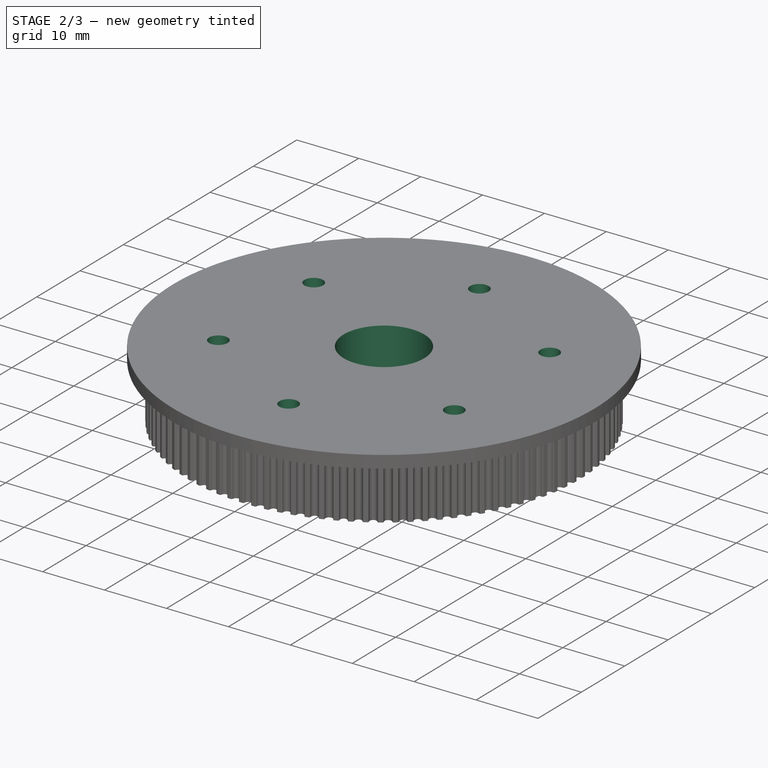
[diagram: stage 2 of 3 — iso view after this stage's code; geometry added in this stage tinted green]
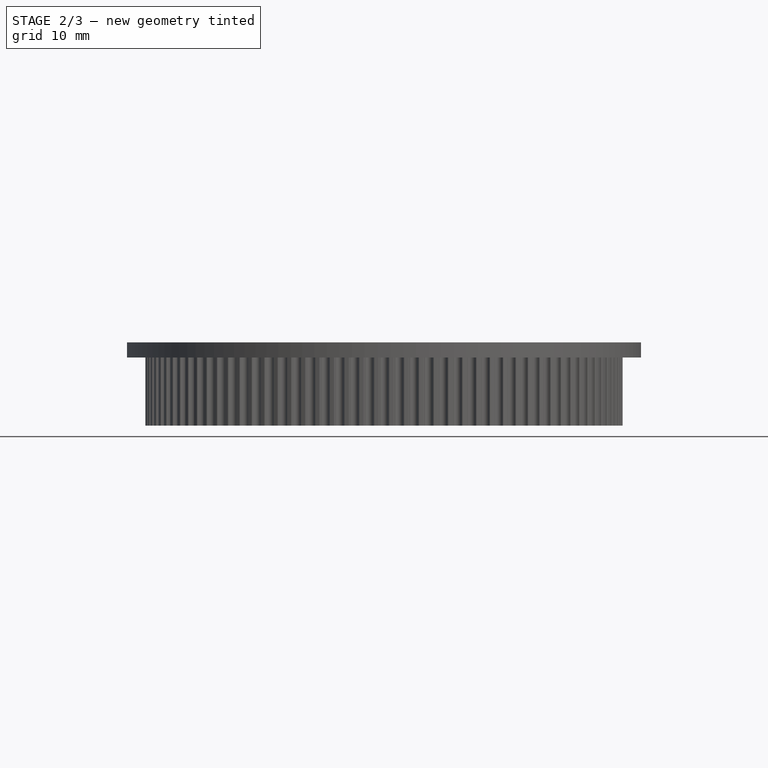
[diagram: stage 2 of 3 — front view after this stage's code; geometry added in this stage tinted green]
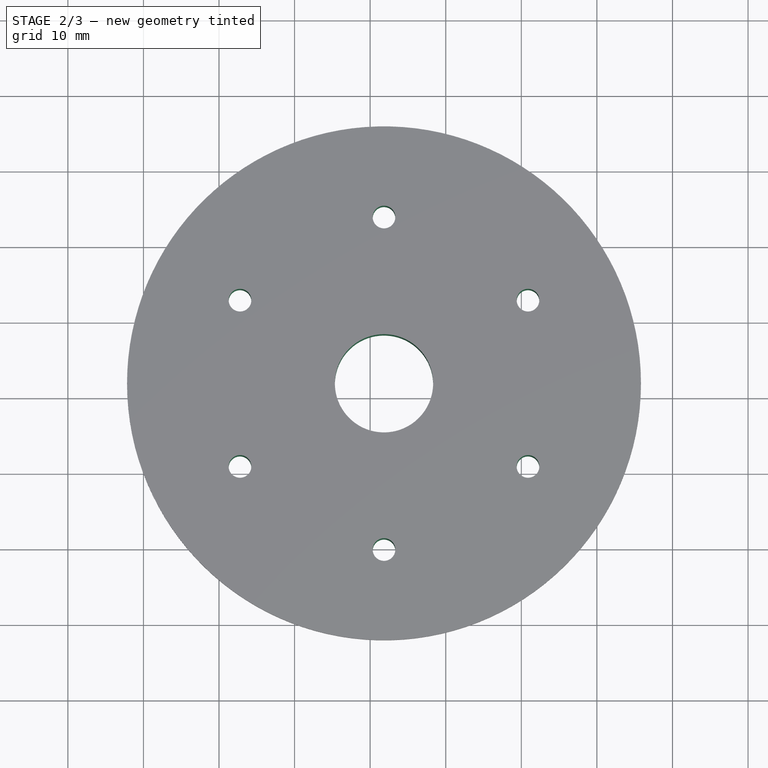
[diagram: stage 2 of 3 — top view after this stage's code; geometry added in this stage tinted green]
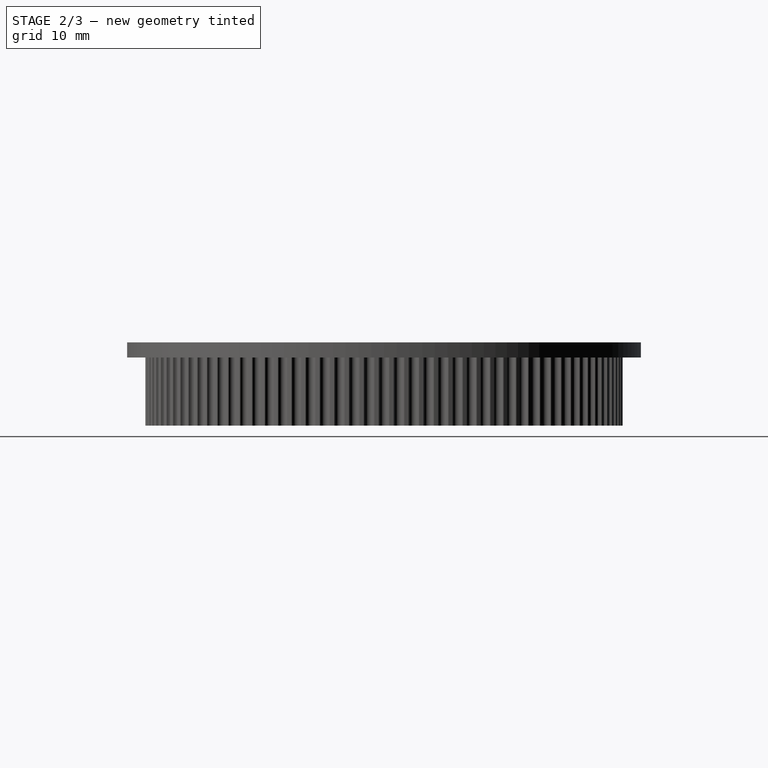
[diagram: stage 2 of 3 — right view after this stage's code; geometry added in this stage tinted green]
FEATURE [Sketcher::SketchObject] Sketch002
  ExternalGeometry = -> [Pad001]
  FullyConstrained = true
  MapMode = 5
  Placement = pos=(0,0,11) rot=(0,0,1;0rad)
  Support = -> [Pad001]
  sketch-geometry (1):
    g0: Circle CenterX=31.831 CenterY=31.831 CenterZ=0 NormalX=0 NormalY=0 NormalZ=1 AngleXU=0 Radius=6.5
  constraints (2):
    c: Coincident(g0,g-3)
    c: Diameter(g0) = 13
FEATURE [PartDesign::Pocket] Pocket
  BaseFeature = -> Pad001
  Direction = (0,0,-1)
  Length = 12
  Length2 = 5
  Profile = -> Sketch002
  ReferenceAxis = -> Sketch002 [N_Axis]
  Type = 0
FEATURE [Sketcher::SketchObject] Sketch003
  ExternalGeometry = -> [Pocket]
  FullyConstrained = true
  MapMode = 5
  Placement = pos=(0,0,11) rot=(0,0,1;0rad)
  Support = -> [Pocket]
  sketch-geometry (2):
    g0: Circle CenterX=31.831 CenterY=9.83099 CenterZ=0 NormalX=0 NormalY=0 NormalZ=1 AngleXU=0 Radius=1.5
    g1: LineSegment StartX=31.831 StartY=9.83099 StartZ=0 EndX=31.831 EndY=31.831 EndZ=0
  constraints (5):
    c: Diameter(g0) = 3
    c: Coincident(g1,g0)
    c: Coincident(g1,g-3)
    c: Vertical(g1)
    c: Distance(g1) = 22
FEATURE [PartDesign::Pocket] Pocket001
  BaseFeature = -> Pocket
  Direction = (0,0,-1)
  Length = 12
  Length2 = 5
  Profile = -> Sketch003
  ReferenceAxis = -> Sketch003 [N_Axis]
  Type = 0
FEATURE [PartDesign::PolarPattern] PolarPattern
  Angle = 360
  Axis = -> Pocket001 [Edge705]
  BaseFeature = -> Pocket001
  Occurrences = 6
  Originals = -> [Pocket001]
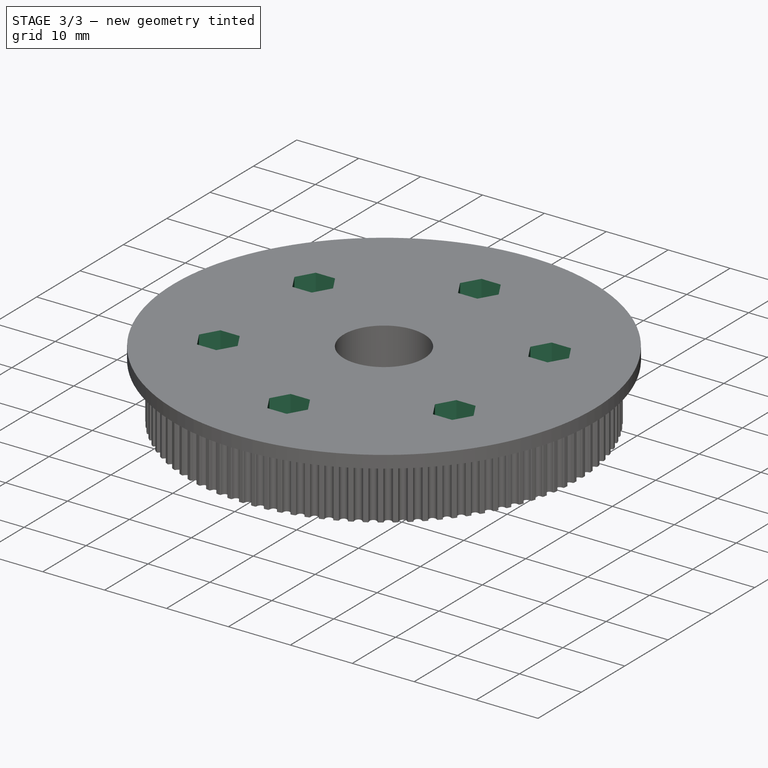
[diagram: stage 3 of 3 — iso view after this stage's code; geometry added in this stage tinted green]
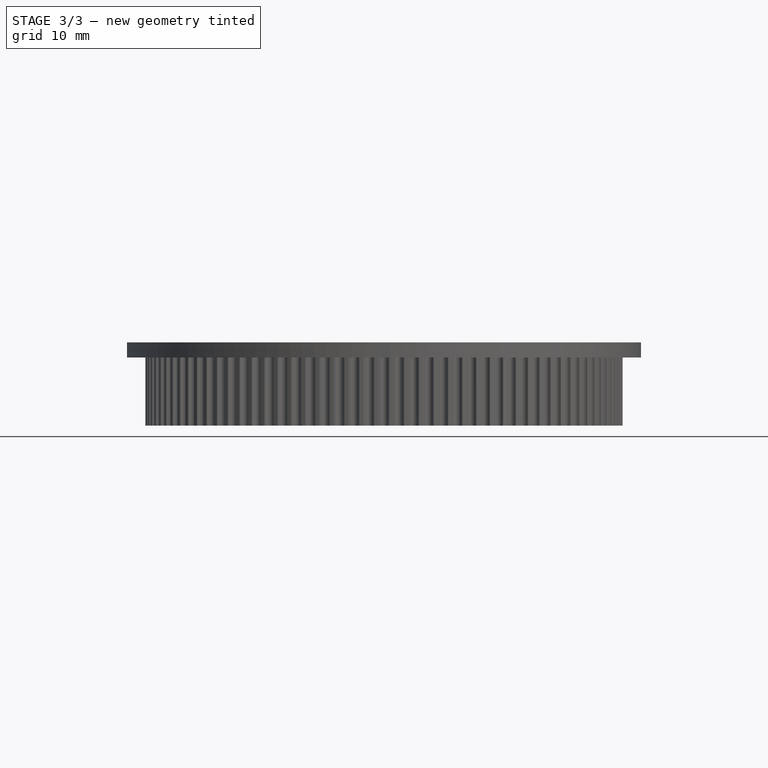
[diagram: stage 3 of 3 — front view after this stage's code; geometry added in this stage tinted green]
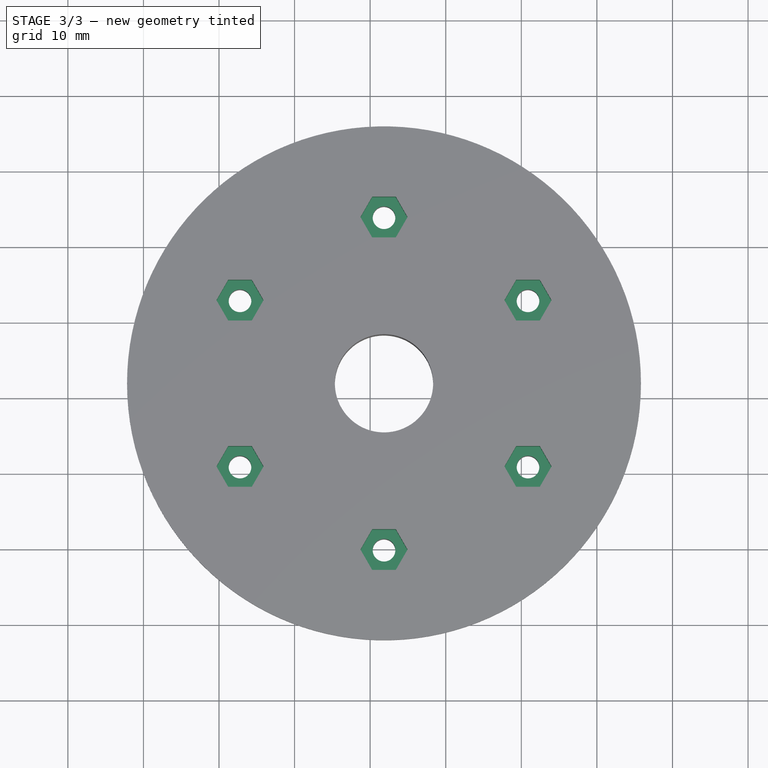
[diagram: stage 3 of 3 — top view after this stage's code; geometry added in this stage tinted green]
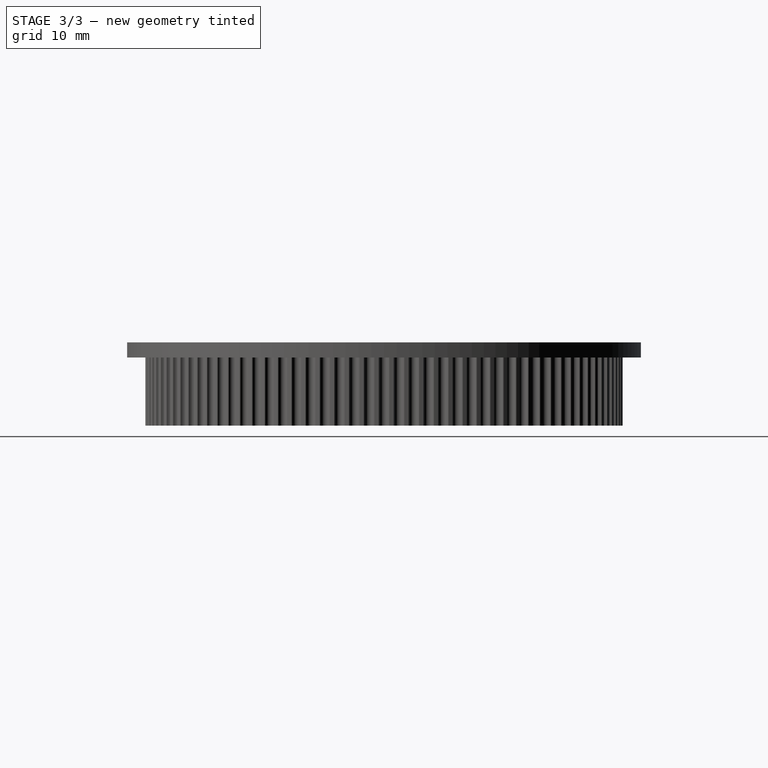
[diagram: stage 3 of 3 — right view after this stage's code; geometry added in this stage tinted green]
FEATURE [Sketcher::SketchObject] Sketch004
  ExternalGeometry = -> [PolarPattern]
  FullyConstrained = true
  MapMode = 5
  Placement = pos=(0,0,11) rot=(0,0,1;0rad)
  Support = -> [PolarPattern]
  sketch-geometry (8):
    g0: LineSegment StartX=33.3898 StartY=7.13099 StartZ=0 EndX=34.9487 EndY=9.83099 EndZ=0
    g1: LineSegment StartX=34.9487 StartY=9.83099 StartZ=0 EndX=33.3898 EndY=12.531 EndZ=0
    g2: LineSegment StartX=33.3898 StartY=12.531 StartZ=0 EndX=30.2721 EndY=12.531 EndZ=0
    g3: LineSegment StartX=30.2721 StartY=12.531 StartZ=0 EndX=28.7133 EndY=9.83099 EndZ=0
    g4: LineSegment StartX=28.7133 StartY=9.83099 StartZ=0 EndX=30.2721 EndY=7.13099 EndZ=0
    g5: LineSegment StartX=30.2721 StartY=7.13099 StartZ=0 EndX=33.3898 EndY=7.13099 EndZ=0
    g6: Circle CenterX=31.831 CenterY=9.83099 CenterZ=0 NormalX=0 NormalY=0 NormalZ=1 AngleXU=0 Radius=3.11769
    g7: LineSegment StartX=31.831 StartY=31.831 StartZ=0 EndX=31.831 EndY=9.83099 EndZ=0
  constraints (18):
    c: Coincident(g0,g1)
    c: Coincident(g1,g2)
    c: Coincident(g2,g3)
    c: Coincident(g3,g4)
    c: Coincident(g4,g5)
    c: Coincident(g5,g0)
    c: Equal(g0, g1-g5) x5
    c: PointOnObject(g0,g6)
    c: PointOnObject(g1,g6)
    c: PointOnObject(g2,g6)
    c: PointOnObject(g3,g6)
    c: PointOnObject(g4,g6)
    c: PointOnObject(g5,g6)
    c: Coincident(g6,g-3)
    c: DistanceY(g0,g1) = 5.4
    c: Coincident(g7,g-4)
    c: Coincident(g7,g6)
    c: Perpendicular(g7,g2)
FEATURE [PartDesign::Pocket] Pocket002
  BaseFeature = -> PolarPattern
  Direction = (0,0,-1)
  Length = 5
  Length2 = 5
  Profile = -> Sketch004
  ReferenceAxis = -> Sketch004 [N_Axis]
  Type = 0
FEATURE [PartDesign::PolarPattern] PolarPattern001
  Angle = 360
  Axis = -> Pocket002 [Edge713]
  BaseFeature = -> Pocket002
  Occurrences = 6
  Originals = -> [Pocket002]
FEATURE [PartDesign::Body] Body
  Group = -> [Sketch,Pad,Sketch001,Pad001,Sketch002,Pocket,Sketch003,Pocket001,PolarPattern,Sketch004,Pocket002,PolarPattern001]
  Origin = -> Origin
  Tip = -> PolarPattern001
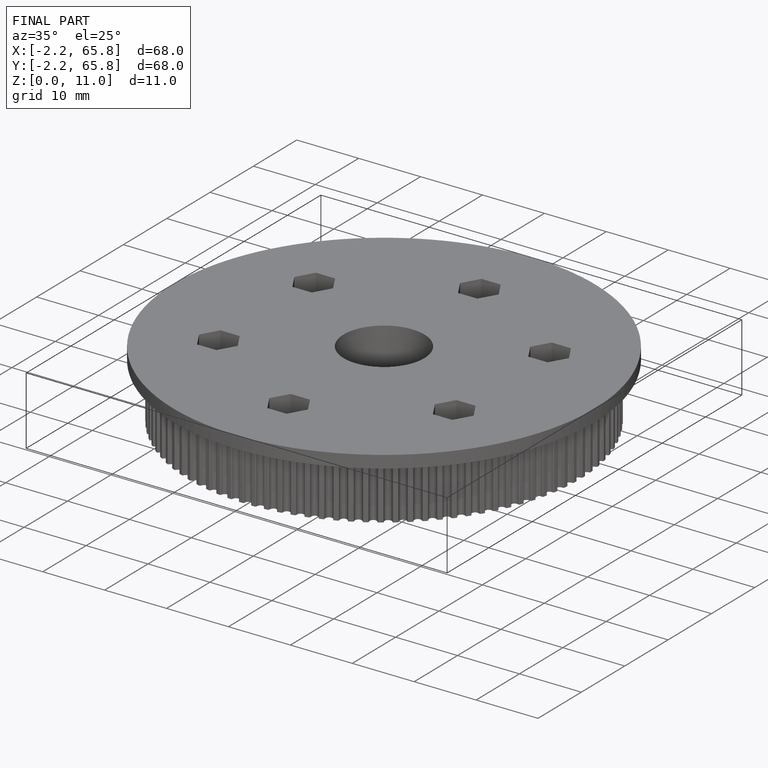
[diagram: finished part — iso view with bounding-box wireframe]
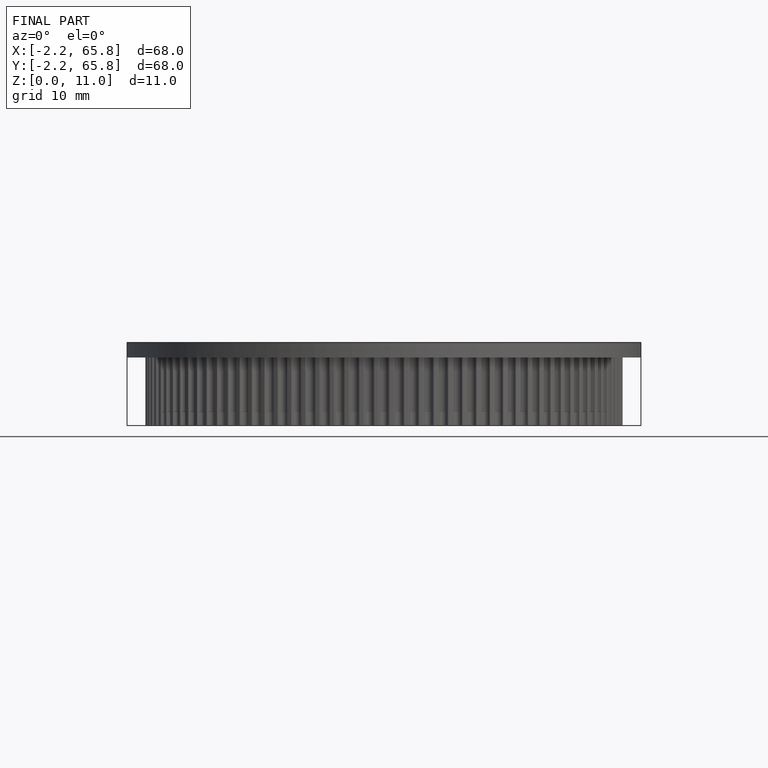
[diagram: finished part — front view with bounding-box wireframe]
